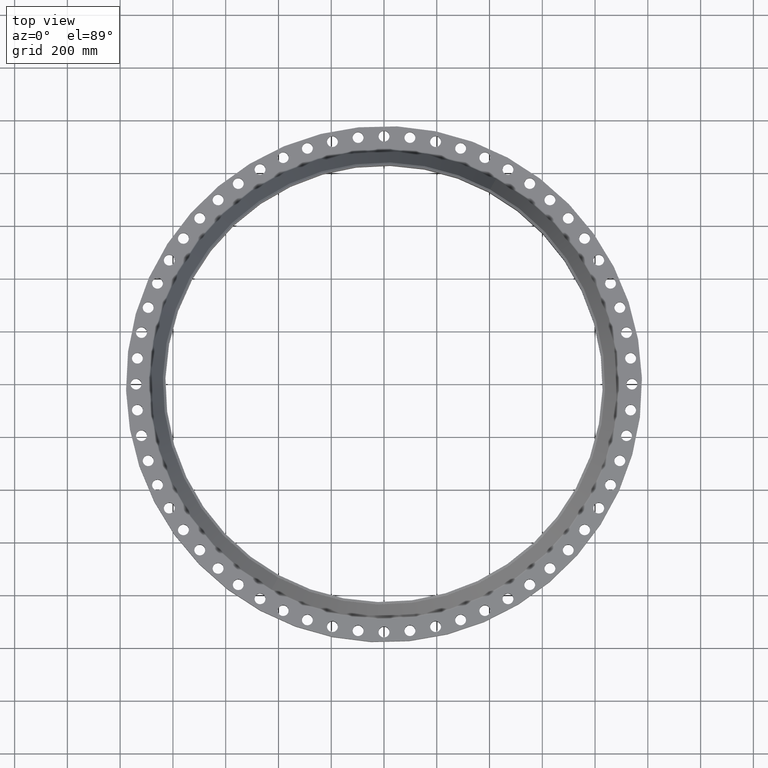
[diagram: clean part render]
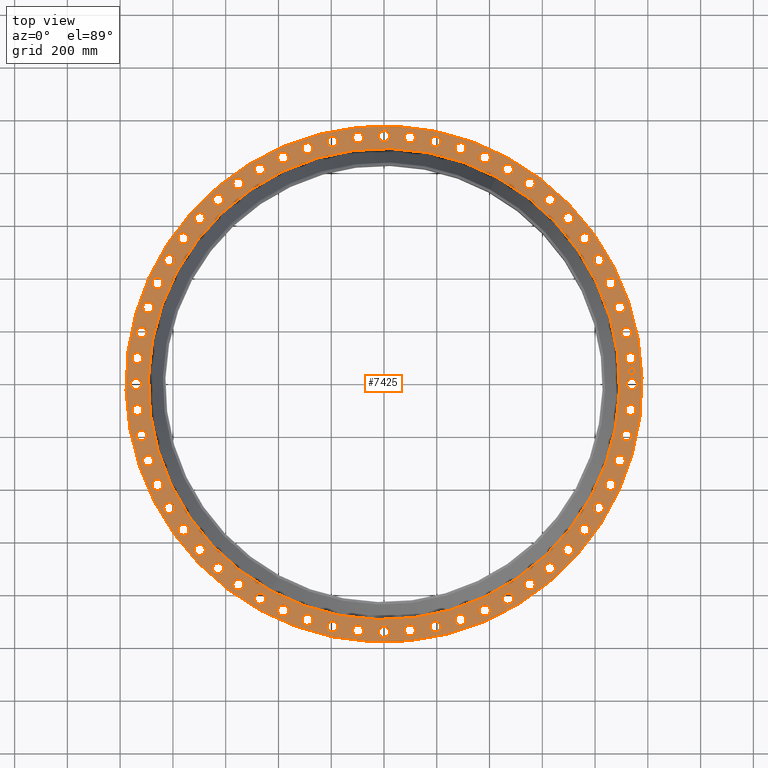
[diagram: same view with one face highlighted and labeled with its STEP entity id]
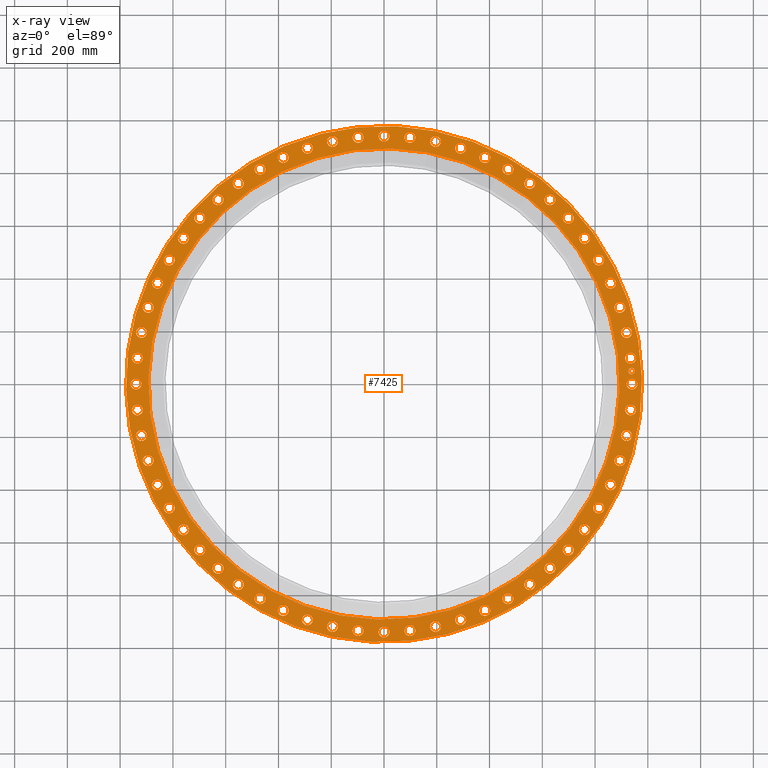
[diagram: x-ray of the same camera — body ghosted, the highlighted face saturated]
A machine part, top view. The second image highlights one B-rep face of the part: STEP entity #7425.
The next image is the same camera in x-ray: the body ghosted, the highlighted face saturated — about 0% of this face is hidden behind the body in this view.
In plain terms, the highlighted planar face has unit normal (0, 0, -1).
Its self-contained STEP definition (entity closure, byte-faithful):
#65=AXIS2_PLACEMENT_3D('Circle Axis2P3D',#63,#64,$) ;
#110=AXIS2_PLACEMENT_3D('Circle Axis2P3D',#108,#109,$) ;
#147=AXIS2_PLACEMENT_3D('Circle Axis2P3D',#145,#146,$) ;
#171=AXIS2_PLACEMENT_3D('Circle Axis2P3D',#169,#170,$) ;
#188=AXIS2_PLACEMENT_3D('Circle Axis2P3D',#186,#187,$) ;
#223=AXIS2_PLACEMENT_3D('Circle Axis2P3D',#221,#222,$) ;
#4402=AXIS2_PLACEMENT_3D('Circle Axis2P3D',#4400,#4401,$) ;
#4414=AXIS2_PLACEMENT_3D('Circle Axis2P3D',#4412,#4413,$) ;
#4449=AXIS2_PLACEMENT_3D('Circle Axis2P3D',#4447,#4448,$) ;
#4461=AXIS2_PLACEMENT_3D('Circle Axis2P3D',#4459,#4460,$) ;
#4496=AXIS2_PLACEMENT_3D('Circle Axis2P3D',#4494,#4495,$) ;
#4508=AXIS2_PLACEMENT_3D('Circle Axis2P3D',#4506,#4507,$) ;
#4543=AXIS2_PLACEMENT_3D('Circle Axis2P3D',#4541,#4542,$) ;
#4555=AXIS2_PLACEMENT_3D('Circle Axis2P3D',#4553,#4554,$) ;
#4590=AXIS2_PLACEMENT_3D('Circle Axis2P3D',#4588,#4589,$) ;
#4602=AXIS2_PLACEMENT_3D('Circle Axis2P3D',#4600,#4601,$) ;
#4637=AXIS2_PLACEMENT_3D('Circle Axis2P3D',#4635,#4636,$) ;
#4649=AXIS2_PLACEMENT_3D('Circle Axis2P3D',#4647,#4648,$) ;
#4684=AXIS2_PLACEMENT_3D('Circle Axis2P3D',#4682,#4683,$) ;
#4696=AXIS2_PLACEMENT_3D('Circle Axis2P3D',#4694,#4695,$) ;
#4731=AXIS2_PLACEMENT_3D('Circle Axis2P3D',#4729,#4730,$) ;
#4743=AXIS2_PLACEMENT_3D('Circle Axis2P3D',#4741,#4742,$) ;
#4778=AXIS2_PLACEMENT_3D('Circle Axis2P3D',#4776,#4777,$) ;
#4790=AXIS2_PLACEMENT_3D('Circle Axis2P3D',#4788,#4789,$) ;
#4825=AXIS2_PLACEMENT_3D('Circle Axis2P3D',#4823,#4824,$) ;
#4837=AXIS2_PLACEMENT_3D('Circle Axis2P3D',#4835,#4836,$) ;
#4872=AXIS2_PLACEMENT_3D('Circle Axis2P3D',#4870,#4871,$) ;
#4884=AXIS2_PLACEMENT_3D('Circle Axis2P3D',#4882,#4883,$) ;
#4919=AXIS2_PLACEMENT_3D('Circle Axis2P3D',#4917,#4918,$) ;
#4931=AXIS2_PLACEMENT_3D('Circle Axis2P3D',#4929,#4930,$) ;
#4966=AXIS2_PLACEMENT_3D('Circle Axis2P3D',#4964,#4965,$) ;
#4978=AXIS2_PLACEMENT_3D('Circle Axis2P3D',#4976,#4977,$) ;
#5013=AXIS2_PLACEMENT_3D('Circle Axis2P3D',#5011,#5012,$) ;
#5025=AXIS2_PLACEMENT_3D('Circle Axis2P3D',#5023,#5024,$) ;
#5060=AXIS2_PLACEMENT_3D('Circle Axis2P3D',#5058,#5059,$) ;
#5072=AXIS2_PLACEMENT_3D('Circle Axis2P3D',#5070,#5071,$) ;
#5107=AXIS2_PLACEMENT_3D('Circle Axis2P3D',#5105,#5106,$) ;
#5119=AXIS2_PLACEMENT_3D('Circle Axis2P3D',#5117,#5118,$) ;
#5154=AXIS2_PLACEMENT_3D('Circle Axis2P3D',#5152,#5153,$) ;
#5166=AXIS2_PLACEMENT_3D('Circle Axis2P3D',#5164,#5165,$) ;
#5201=AXIS2_PLACEMENT_3D('Circle Axis2P3D',#5199,#5200,$) ;
#5213=AXIS2_PLACEMENT_3D('Circle Axis2P3D',#5211,#5212,$) ;
#5248=AXIS2_PLACEMENT_3D('Circle Axis2P3D',#5246,#5247,$) ;
#5260=AXIS2_PLACEMENT_3D('Circle Axis2P3D',#5258,#5259,$) ;
#5295=AXIS2_PLACEMENT_3D('Circle Axis2P3D',#5293,#5294,$) ;
#5307=AXIS2_PLACEMENT_3D('Circle Axis2P3D',#5305,#5306,$) ;
#5342=AXIS2_PLACEMENT_3D('Circle Axis2P3D',#5340,#5341,$) ;
#5354=AXIS2_PLACEMENT_3D('Circle Axis2P3D',#5352,#5353,$) ;
#5389=AXIS2_PLACEMENT_3D('Circle Axis2P3D',#5387,#5388,$) ;
#5401=AXIS2_PLACEMENT_3D('Circle Axis2P3D',#5399,#5400,$) ;
#5436=AXIS2_PLACEMENT_3D('Circle Axis2P3D',#5434,#5435,$) ;
#5448=AXIS2_PLACEMENT_3D('Circle Axis2P3D',#5446,#5447,$) ;
#5483=AXIS2_PLACEMENT_3D('Circle Axis2P3D',#5481,#5482,$) ;
#5495=AXIS2_PLACEMENT_3D('Circle Axis2P3D',#5493,#5494,$) ;
#5530=AXIS2_PLACEMENT_3D('Circle Axis2P3D',#5528,#5529,$) ;
#5542=AXIS2_PLACEMENT_3D('Circle Axis2P3D',#5540,#5541,$) ;
#5577=AXIS2_PLACEMENT_3D('Circle Axis2P3D',#5575,#5576,$) ;
#5589=AXIS2_PLACEMENT_3D('Circle Axis2P3D',#5587,#5588,$) ;
#5624=AXIS2_PLACEMENT_3D('Circle Axis2P3D',#5622,#5623,$) ;
#5636=AXIS2_PLACEMENT_3D('Circle Axis2P3D',#5634,#5635,$) ;
#5671=AXIS2_PLACEMENT_3D('Circle Axis2P3D',#5669,#5670,$) ;
#5683=AXIS2_PLACEMENT_3D('Circle Axis2P3D',#5681,#5682,$) ;
#5718=AXIS2_PLACEMENT_3D('Circle Axis2P3D',#5716,#5717,$) ;
#5730=AXIS2_PLACEMENT_3D('Circle Axis2P3D',#5728,#5729,$) ;
#5765=AXIS2_PLACEMENT_3D('Circle Axis2P3D',#5763,#5764,$) ;
#5777=AXIS2_PLACEMENT_3D('Circle Axis2P3D',#5775,#5776,$) ;
#5812=AXIS2_PLACEMENT_3D('Circle Axis2P3D',#5810,#5811,$) ;
#5824=AXIS2_PLACEMENT_3D('Circle Axis2P3D',#5822,#5823,$) ;
#5859=AXIS2_PLACEMENT_3D('Circle Axis2P3D',#5857,#5858,$) ;
#5871=AXIS2_PLACEMENT_3D('Circle Axis2P3D',#5869,#5870,$) ;
#5906=AXIS2_PLACEMENT_3D('Circle Axis2P3D',#5904,#5905,$) ;
#5918=AXIS2_PLACEMENT_3D('Circle Axis2P3D',#5916,#5917,$) ;
#5953=AXIS2_PLACEMENT_3D('Circle Axis2P3D',#5951,#5952,$) ;
#5965=AXIS2_PLACEMENT_3D('Circle Axis2P3D',#5963,#5964,$) ;
#6000=AXIS2_PLACEMENT_3D('Circle Axis2P3D',#5998,#5999,$) ;
#6012=AXIS2_PLACEMENT_3D('Circle Axis2P3D',#6010,#6011,$) ;
#6047=AXIS2_PLACEMENT_3D('Circle Axis2P3D',#6045,#6046,$) ;
#6059=AXIS2_PLACEMENT_3D('Circle Axis2P3D',#6057,#6058,$) ;
#6094=AXIS2_PLACEMENT_3D('Circle Axis2P3D',#6092,#6093,$) ;
#6106=AXIS2_PLACEMENT_3D('Circle Axis2P3D',#6104,#6105,$) ;
#6141=AXIS2_PLACEMENT_3D('Circle Axis2P3D',#6139,#6140,$) ;
#6153=AXIS2_PLACEMENT_3D('Circle Axis2P3D',#6151,#6152,$) ;
#6188=AXIS2_PLACEMENT_3D('Circle Axis2P3D',#6186,#6187,$) ;
#6200=AXIS2_PLACEMENT_3D('Circle Axis2P3D',#6198,#6199,$) ;
#6235=AXIS2_PLACEMENT_3D('Circle Axis2P3D',#6233,#6234,$) ;
#6247=AXIS2_PLACEMENT_3D('Circle Axis2P3D',#6245,#6246,$) ;
#6282=AXIS2_PLACEMENT_3D('Circle Axis2P3D',#6280,#6281,$) ;
#6294=AXIS2_PLACEMENT_3D('Circle Axis2P3D',#6292,#6293,$) ;
#6329=AXIS2_PLACEMENT_3D('Circle Axis2P3D',#6327,#6328,$) ;
#6341=AXIS2_PLACEMENT_3D('Circle Axis2P3D',#6339,#6340,$) ;
#6376=AXIS2_PLACEMENT_3D('Circle Axis2P3D',#6374,#6375,$) ;
#6388=AXIS2_PLACEMENT_3D('Circle Axis2P3D',#6386,#6387,$) ;
#6423=AXIS2_PLACEMENT_3D('Circle Axis2P3D',#6421,#6422,$) ;
#6435=AXIS2_PLACEMENT_3D('Circle Axis2P3D',#6433,#6434,$) ;
#6470=AXIS2_PLACEMENT_3D('Circle Axis2P3D',#6468,#6469,$) ;
#6482=AXIS2_PLACEMENT_3D('Circle Axis2P3D',#6480,#6481,$) ;
#6517=AXIS2_PLACEMENT_3D('Circle Axis2P3D',#6515,#6516,$) ;
#6529=AXIS2_PLACEMENT_3D('Circle Axis2P3D',#6527,#6528,$) ;
#6564=AXIS2_PLACEMENT_3D('Circle Axis2P3D',#6562,#6563,$) ;
#6576=AXIS2_PLACEMENT_3D('Circle Axis2P3D',#6574,#6575,$) ;
#6611=AXIS2_PLACEMENT_3D('Circle Axis2P3D',#6609,#6610,$) ;
#6623=AXIS2_PLACEMENT_3D('Circle Axis2P3D',#6621,#6622,$) ;
#6658=AXIS2_PLACEMENT_3D('Circle Axis2P3D',#6656,#6657,$) ;
#6670=AXIS2_PLACEMENT_3D('Circle Axis2P3D',#6668,#6669,$) ;
#6705=AXIS2_PLACEMENT_3D('Circle Axis2P3D',#6703,#6704,$) ;
#6717=AXIS2_PLACEMENT_3D('Circle Axis2P3D',#6715,#6716,$) ;
#6752=AXIS2_PLACEMENT_3D('Circle Axis2P3D',#6750,#6751,$) ;
#6764=AXIS2_PLACEMENT_3D('Circle Axis2P3D',#6762,#6763,$) ;
#6799=AXIS2_PLACEMENT_3D('Circle Axis2P3D',#6797,#6798,$) ;
#6811=AXIS2_PLACEMENT_3D('Circle Axis2P3D',#6809,#6810,$) ;
#6846=AXIS2_PLACEMENT_3D('Circle Axis2P3D',#6844,#6845,$) ;
#6858=AXIS2_PLACEMENT_3D('Circle Axis2P3D',#6856,#6857,$) ;
#6893=AXIS2_PLACEMENT_3D('Circle Axis2P3D',#6891,#6892,$) ;
#6905=AXIS2_PLACEMENT_3D('Circle Axis2P3D',#6903,#6904,$) ;
#6940=AXIS2_PLACEMENT_3D('Circle Axis2P3D',#6938,#6939,$) ;
#6952=AXIS2_PLACEMENT_3D('Circle Axis2P3D',#6950,#6951,$) ;
#6987=AXIS2_PLACEMENT_3D('Circle Axis2P3D',#6985,#6986,$) ;
#6999=AXIS2_PLACEMENT_3D('Circle Axis2P3D',#6997,#6998,$) ;
#7034=AXIS2_PLACEMENT_3D('Circle Axis2P3D',#7032,#7033,$) ;
#7046=AXIS2_PLACEMENT_3D('Circle Axis2P3D',#7044,#7045,$) ;
#7081=AXIS2_PLACEMENT_3D('Circle Axis2P3D',#7079,#7080,$) ;
#7093=AXIS2_PLACEMENT_3D('Circle Axis2P3D',#7091,#7092,$) ;
#7128=AXIS2_PLACEMENT_3D('Circle Axis2P3D',#7126,#7127,$) ;
#7140=AXIS2_PLACEMENT_3D('Circle Axis2P3D',#7138,#7139,$) ;
#7157=AXIS2_PLACEMENT_3D('Plane Axis2P3D',#7154,#7155,#7156) ;
#7409=AXIS2_PLACEMENT_3D('Circle Axis2P3D',#7407,#7408,$) ;
#7418=AXIS2_PLACEMENT_3D('Circle Axis2P3D',#7416,#7417,$) ;
#46=CARTESIAN_POINT('Vertex',(36.2847702122,0.390731813964,4.00000000002)) ;
#60=CARTESIAN_POINT('Vertex',(37.7152297881,-0.390731813964,4.00000000002)) ;
#63=CARTESIAN_POINT('Axis2P3D Location',(37.0000000001,0.,4.00000000002)) ;
#108=CARTESIAN_POINT('Axis2P3D Location',(37.0000000001,0.,4.00000000002)) ;
#142=CARTESIAN_POINT('Vertex',(-18.4578832363,-33.7869286329,4.00000000002)) ;
#145=CARTESIAN_POINT('Axis2P3D Location',(0.,0.,4.00000000002)) ;
#149=CARTESIAN_POINT('Vertex',(18.4578832363,33.7869286329,4.00000000002)) ;
#169=CARTESIAN_POINT('Axis2P3D Location',(0.,0.,4.00000000002)) ;
#186=CARTESIAN_POINT('Axis2P3D Location',(0.,0.,4.00000000002)) ;
#190=CARTESIAN_POINT('Vertex',(16.8541670485,30.851345842,4.00000000002)) ;
#192=CARTESIAN_POINT('Vertex',(-16.8541670485,-30.851345842,4.00000000002)) ;
#221=CARTESIAN_POINT('Axis2P3D Location',(0.,0.,4.00000000002)) ;
#4390=CARTESIAN_POINT('Vertex',(10.8410025948,34.6296099233,4.00000000002)) ;
#4397=CARTESIAN_POINT('Vertex',(12.0262549891,35.7485722828,4.00000000002)) ;
#4400=CARTESIAN_POINT('Axis2P3D Location',(11.4336287919,35.1890911031,4.00000000002)) ;
#4412=CARTESIAN_POINT('Axis2P3D Location',(11.4336287919,35.1890911031,4.00000000002)) ;
#4437=CARTESIAN_POINT('Vertex',(-34.6296099233,10.8410025948,4.00000000002)) ;
#4444=CARTESIAN_POINT('Vertex',(-35.7485722828,12.0262549891,4.00000000002)) ;
#4447=CARTESIAN_POINT('Axis2P3D Location',(-35.1890911031,11.4336287919,4.00000000002)) ;
#4459=CARTESIAN_POINT('Axis2P3D Location',(-35.1890911031,11.4336287919,4.00000000002)) ;
#4484=CARTESIAN_POINT('Vertex',(32.9888620626,15.1152969047,4.00000000002)) ;
#4491=CARTESIAN_POINT('Vertex',(34.6135018032,14.983214683,4.00000000002)) ;
#4494=CARTESIAN_POINT('Axis2P3D Location',(33.8011819329,15.0492557939,4.00000000002)) ;
#4506=CARTESIAN_POINT('Axis2P3D Location',(33.8011819329,15.0492557939,4.00000000002)) ;
#4531=CARTESIAN_POINT('Vertex',(36.1268410405,-3.4041999261,4.00000000002)) ;
#4538=CARTESIAN_POINT('Vertex',(37.467779217,-4.33090635574,4.00000000002)) ;
#4541=CARTESIAN_POINT('Axis2P3D Location',(36.7973101288,-3.86755314092,4.00000000002)) ;
#4553=CARTESIAN_POINT('Axis2P3D Location',(36.7973101288,-3.86755314092,4.00000000002)) ;
#4578=CARTESIAN_POINT('Vertex',(-35.5730986383,7.16183453939,4.00000000002)) ;
#4585=CARTESIAN_POINT('Vertex',(-36.8098238162,8.22363058118,4.00000000002)) ;
#4588=CARTESIAN_POINT('Axis2P3D Location',(-36.1914612273,7.69273256029,4.00000000002)) ;
#4600=CARTESIAN_POINT('Axis2P3D Location',(-36.1914612273,7.69273256029,4.00000000002)) ;
#4625=CARTESIAN_POINT('Vertex',(35.5730986383,-7.16183453939,4.00000000002)) ;
#4632=CARTESIAN_POINT('Vertex',(36.8098238162,-8.22363058118,4.00000000002)) ;
#4635=CARTESIAN_POINT('Axis2P3D Location',(36.1914612273,-7.69273256029,4.00000000002)) ;
#4647=CARTESIAN_POINT('Axis2P3D Location',(36.1914612273,-7.69273256029,4.00000000002)) ;
#4672=CARTESIAN_POINT('Vertex',(-11.5842186704,34.3881243818,4.00000000002)) ;
#4679=CARTESIAN_POINT('Vertex',(-11.2830389135,35.9900578243,4.00000000002)) ;
#4682=CARTESIAN_POINT('Axis2P3D Location',(-11.4336287919,35.1890911031,4.00000000002)) ;
#4694=CARTESIAN_POINT('Axis2P3D Location',(-11.4336287919,35.1890911031,4.00000000002)) ;
#4719=CARTESIAN_POINT('Vertex',(34.6296099233,-10.8410025948,4.00000000002)) ;
#4726=CARTESIAN_POINT('Vertex',(35.7485722828,-12.0262549891,4.00000000002)) ;
#4729=CARTESIAN_POINT('Axis2P3D Location',(35.1890911031,-11.4336287919,4.00000000002)) ;
#4741=CARTESIAN_POINT('Axis2P3D Location',(35.1890911031,-11.4336287919,4.00000000002)) ;
#4766=CARTESIAN_POINT('Vertex',(-29.5846621365,21.0115441358,4.00000000002)) ;
#4773=CARTESIAN_POINT('Vertex',(-30.2825954475,22.484564534,4.00000000002)) ;
#4776=CARTESIAN_POINT('Axis2P3D Location',(-29.933628792,21.7480543349,4.00000000002)) ;
#4788=CARTESIAN_POINT('Axis2P3D Location',(-29.933628792,21.7480543349,4.00000000002)) ;
#4813=CARTESIAN_POINT('Vertex',(33.3067119553,-14.4013943571,4.00000000002)) ;
#4820=CARTESIAN_POINT('Vertex',(34.2956519105,-15.6971172306,4.00000000002)) ;
#4823=CARTESIAN_POINT('Axis2P3D Location',(33.8011819329,-15.0492557939,4.00000000002)) ;
#4835=CARTESIAN_POINT('Axis2P3D Location',(33.8011819329,-15.0492557939,4.00000000002)) ;
#4860=CARTESIAN_POINT('Vertex',(-15.1152969047,32.9888620626,4.00000000002)) ;
#4867=CARTESIAN_POINT('Vertex',(-14.983214683,34.6135018032,4.00000000002)) ;
#4870=CARTESIAN_POINT('Axis2P3D Location',(-15.0492557939,33.8011819329,4.00000000002)) ;
#4882=CARTESIAN_POINT('Axis2P3D Location',(-15.0492557939,33.8011819329,4.00000000002)) ;
#4907=CARTESIAN_POINT('Vertex',(31.6188986812,-17.8040014291,4.00000000002)) ;
#4914=CARTESIAN_POINT('Vertex',(32.4669811991,-19.195998571,4.00000000002)) ;
#4917=CARTESIAN_POINT('Axis2P3D Location',(32.0429399402,-18.5000000001,4.00000000002)) ;
#4929=CARTESIAN_POINT('Axis2P3D Location',(32.0429399402,-18.5000000001,4.00000000002)) ;
#4954=CARTESIAN_POINT('Vertex',(-7.92622131211,35.4106232141,4.00000000002)) ;
#4961=CARTESIAN_POINT('Vertex',(-7.45924380846,36.9722992404,4.00000000002)) ;
#4964=CARTESIAN_POINT('Axis2P3D Location',(-7.69273256029,36.1914612273,4.00000000002)) ;
#4976=CARTESIAN_POINT('Axis2P3D Location',(-7.69273256029,36.1914612273,4.00000000002)) ;
#5001=CARTESIAN_POINT('Vertex',(29.5846621365,-21.0115441358,4.00000000002)) ;
#5008=CARTESIAN_POINT('Vertex',(30.2825954475,-22.484564534,4.00000000002)) ;
#5011=CARTESIAN_POINT('Axis2P3D Location',(29.933628792,-21.7480543349,4.00000000002)) ;
#5023=CARTESIAN_POINT('Axis2P3D Location',(29.933628792,-21.7480543349,4.00000000002)) ;
#5048=CARTESIAN_POINT('Vertex',(17.8040014291,31.6188986812,4.00000000002)) ;
#5055=CARTESIAN_POINT('Vertex',(19.195998571,32.4669811991,4.00000000002)) ;
#5058=CARTESIAN_POINT('Axis2P3D Location',(18.5000000001,32.0429399402,4.00000000002)) ;
#5070=CARTESIAN_POINT('Axis2P3D Location',(18.5000000001,32.0429399402,4.00000000002)) ;
#5095=CARTESIAN_POINT('Vertex',(27.2262898424,-23.988879968,4.00000000002)) ;
#5102=CARTESIAN_POINT('Vertex',(27.7664272431,-25.5267849028,4.00000000002)) ;
#5105=CARTESIAN_POINT('Axis2P3D Location',(27.4963585428,-24.7578324354,4.00000000002)) ;
#5117=CARTESIAN_POINT('Axis2P3D Location',(27.4963585428,-24.7578324354,4.00000000002)) ;
#5142=CARTESIAN_POINT('Vertex',(29.1253293408,21.6437614913,4.00000000002)) ;
#5149=CARTESIAN_POINT('Vertex',(30.7419282432,21.8523471785,4.00000000002)) ;
#5152=CARTESIAN_POINT('Axis2P3D Location',(29.933628792,21.7480543349,4.00000000002)) ;
#5164=CARTESIAN_POINT('Axis2P3D Location',(29.933628792,21.7480543349,4.00000000002)) ;
#5189=CARTESIAN_POINT('Vertex',(24.5696206194,-26.7033886112,4.00000000002)) ;
#5196=CARTESIAN_POINT('Vertex',(24.9460442514,-28.2893284743,4.00000000002)) ;
#5199=CARTESIAN_POINT('Axis2P3D Location',(24.7578324354,-27.4963585428,4.00000000002)) ;
#5211=CARTESIAN_POINT('Axis2P3D Location',(24.7578324354,-27.4963585428,4.00000000002)) ;
#5236=CARTESIAN_POINT('Vertex',(35.4106232141,7.92622131211,4.00000000002)) ;
#5243=CARTESIAN_POINT('Vertex',(36.9722992404,7.45924380846,4.00000000002)) ;
#5246=CARTESIAN_POINT('Axis2P3D Location',(36.1914612273,7.69273256029,4.00000000002)) ;
#5258=CARTESIAN_POINT('Axis2P3D Location',(36.1914612273,7.69273256029,4.00000000002)) ;
#5283=CARTESIAN_POINT('Vertex',(21.6437614913,-29.1253293408,4.00000000002)) ;
#5290=CARTESIAN_POINT('Vertex',(21.8523471785,-30.7419282432,4.00000000002)) ;
#5293=CARTESIAN_POINT('Axis2P3D Location',(21.7480543349,-29.933628792,4.00000000002)) ;
#5305=CARTESIAN_POINT('Axis2P3D Location',(21.7480543349,-29.933628792,4.00000000002)) ;
#5330=CARTESIAN_POINT('Vertex',(3.4041999261,36.1268410405,4.00000000002)) ;
#5337=CARTESIAN_POINT('Vertex',(4.33090635574,37.467779217,4.00000000002)) ;
#5340=CARTESIAN_POINT('Axis2P3D Location',(3.86755314092,36.7973101288,4.00000000002)) ;
#5352=CARTESIAN_POINT('Axis2P3D Location',(3.86755314092,36.7973101288,4.00000000002)) ;
#5377=CARTESIAN_POINT('Vertex',(18.4807687831,-31.2281668673,4.00000000002)) ;
#5384=CARTESIAN_POINT('Vertex',(18.5192312171,-32.857713013,4.00000000002)) ;
#5387=CARTESIAN_POINT('Axis2P3D Location',(18.5000000001,-32.0429399402,4.00000000002)) ;
#5399=CARTESIAN_POINT('Axis2P3D Location',(18.5000000001,-32.0429399402,4.00000000002)) ;
#5424=CARTESIAN_POINT('Vertex',(31.2281668673,18.4807687831,4.00000000002)) ;
#5431=CARTESIAN_POINT('Vertex',(32.857713013,18.5192312171,4.00000000002)) ;
#5434=CARTESIAN_POINT('Axis2P3D Location',(32.0429399402,18.5000000001,4.00000000002)) ;
#5446=CARTESIAN_POINT('Axis2P3D Location',(32.0429399402,18.5000000001,4.00000000002)) ;
#5471=CARTESIAN_POINT('Vertex',(15.1152969047,-32.9888620626,4.00000000002)) ;
#5478=CARTESIAN_POINT('Vertex',(14.983214683,-34.6135018032,4.00000000002)) ;
#5481=CARTESIAN_POINT('Axis2P3D Location',(15.0492557939,-33.8011819329,4.00000000002)) ;
#5493=CARTESIAN_POINT('Axis2P3D Location',(15.0492557939,-33.8011819329,4.00000000002)) ;
#5518=CARTESIAN_POINT('Vertex',(-33.3067119553,14.4013943571,4.00000000002)) ;
#5525=CARTESIAN_POINT('Vertex',(-34.2956519105,15.6971172306,4.00000000002)) ;
#5528=CARTESIAN_POINT('Axis2P3D Location',(-33.8011819329,15.0492557939,4.00000000002)) ;
#5540=CARTESIAN_POINT('Axis2P3D Location',(-33.8011819329,15.0492557939,4.00000000002)) ;
#5565=CARTESIAN_POINT('Vertex',(11.5842186704,-34.3881243818,4.00000000002)) ;
#5572=CARTESIAN_POINT('Vertex',(11.2830389135,-35.9900578243,4.00000000002)) ;
#5575=CARTESIAN_POINT('Axis2P3D Location',(11.4336287919,-35.1890911031,4.00000000002)) ;
#5587=CARTESIAN_POINT('Axis2P3D Location',(11.4336287919,-35.1890911031,4.00000000002)) ;
#5612=CARTESIAN_POINT('Vertex',(-4.18138261451,36.0451558484,4.00000000002)) ;
#5619=CARTESIAN_POINT('Vertex',(-3.55372366733,37.5494644092,4.00000000002)) ;
#5622=CARTESIAN_POINT('Axis2P3D Location',(-3.86755314092,36.7973101288,4.00000000002)) ;
#5634=CARTESIAN_POINT('Axis2P3D Location',(-3.86755314092,36.7973101288,4.00000000002)) ;
#5659=CARTESIAN_POINT('Vertex',(7.92622131211,-35.4106232141,4.00000000002)) ;
#5666=CARTESIAN_POINT('Vertex',(7.45924380846,-36.9722992404,4.00000000002)) ;
#5669=CARTESIAN_POINT('Axis2P3D Location',(7.69273256029,-36.1914612273,4.00000000002)) ;
#5681=CARTESIAN_POINT('Axis2P3D Location',(7.69273256029,-36.1914612273,4.00000000002)) ;
#5706=CARTESIAN_POINT('Vertex',(-21.6437614913,29.1253293408,4.00000000002)) ;
#5713=CARTESIAN_POINT('Vertex',(-21.8523471785,30.7419282432,4.00000000002)) ;
#5716=CARTESIAN_POINT('Axis2P3D Location',(-21.7480543349,29.933628792,4.00000000002)) ;
#5728=CARTESIAN_POINT('Axis2P3D Location',(-21.7480543349,29.933628792,4.00000000002)) ;
#5753=CARTESIAN_POINT('Vertex',(4.18138261451,-36.0451558484,4.00000000002)) ;
#5760=CARTESIAN_POINT('Vertex',(3.55372366733,-37.5494644092,4.00000000002)) ;
#5763=CARTESIAN_POINT('Axis2P3D Location',(3.86755314092,-36.7973101288,4.00000000002)) ;
#5775=CARTESIAN_POINT('Axis2P3D Location',(3.86755314092,-36.7973101288,4.00000000002)) ;
#5800=CARTESIAN_POINT('Vertex',(-24.5696206194,26.7033886112,4.00000000002)) ;
#5807=CARTESIAN_POINT('Vertex',(-24.9460442514,28.2893284743,4.00000000002)) ;
#5810=CARTESIAN_POINT('Axis2P3D Location',(-24.7578324354,27.4963585428,4.00000000002)) ;
#5822=CARTESIAN_POINT('Axis2P3D Location',(-24.7578324354,27.4963585428,4.00000000002)) ;
#5847=CARTESIAN_POINT('Vertex',(0.390731813964,-36.2847702122,4.00000000002)) ;
#5854=CARTESIAN_POINT('Vertex',(-0.390731813964,-37.7152297881,4.00000000002)) ;
#5857=CARTESIAN_POINT('Axis2P3D Location',(2.26559657843E-015,-37.0000000001,4.00000000002)) ;
#5869=CARTESIAN_POINT('Axis2P3D Location',(2.26559657843E-015,-37.0000000001,4.00000000002)) ;
#5894=CARTESIAN_POINT('Vertex',(-36.1268410405,3.4041999261,4.00000000002)) ;
#5901=CARTESIAN_POINT('Vertex',(-37.467779217,4.33090635574,4.00000000002)) ;
#5904=CARTESIAN_POINT('Axis2P3D Location',(-36.7973101288,3.86755314092,4.00000000002)) ;
#5916=CARTESIAN_POINT('Axis2P3D Location',(-36.7973101288,3.86755314092,4.00000000002)) ;
#5941=CARTESIAN_POINT('Vertex',(-3.4041999261,-36.1268410405,4.00000000002)) ;
#5948=CARTESIAN_POINT('Vertex',(-4.33090635574,-37.467779217,4.00000000002)) ;
#5951=CARTESIAN_POINT('Axis2P3D Location',(-3.86755314092,-36.7973101288,4.00000000002)) ;
#5963=CARTESIAN_POINT('Axis2P3D Location',(-3.86755314092,-36.7973101288,4.00000000002)) ;
#5988=CARTESIAN_POINT('Vertex',(14.4013943571,33.3067119553,4.00000000002)) ;
#5995=CARTESIAN_POINT('Vertex',(15.6971172306,34.2956519105,4.00000000002)) ;
#5998=CARTESIAN_POINT('Axis2P3D Location',(15.0492557939,33.8011819329,4.00000000002)) ;
#6010=CARTESIAN_POINT('Axis2P3D Location',(15.0492557939,33.8011819329,4.00000000002)) ;
#6035=CARTESIAN_POINT('Vertex',(-7.16183453939,-35.5730986383,4.00000000002)) ;
#6042=CARTESIAN_POINT('Vertex',(-8.22363058118,-36.8098238162,4.00000000002)) ;
#6045=CARTESIAN_POINT('Axis2P3D Location',(-7.69273256029,-36.1914612273,4.00000000002)) ;
#6057=CARTESIAN_POINT('Axis2P3D Location',(-7.69273256029,-36.1914612273,4.00000000002)) ;
#6082=CARTESIAN_POINT('Vertex',(23.988879968,27.2262898424,4.00000000002)) ;
#6089=CARTESIAN_POINT('Vertex',(25.5267849028,27.7664272431,4.00000000002)) ;
#6092=CARTESIAN_POINT('Axis2P3D Location',(24.7578324354,27.4963585428,4.00000000002)) ;
#6104=CARTESIAN_POINT('Axis2P3D Location',(24.7578324354,27.4963585428,4.00000000002)) ;
#6129=CARTESIAN_POINT('Vertex',(-10.8410025948,-34.6296099233,4.00000000002)) ;
#6136=CARTESIAN_POINT('Vertex',(-12.0262549891,-35.7485722828,4.00000000002)) ;
#6139=CARTESIAN_POINT('Axis2P3D Location',(-11.4336287919,-35.1890911031,4.00000000002)) ;
#6151=CARTESIAN_POINT('Axis2P3D Location',(-11.4336287919,-35.1890911031,4.00000000002)) ;
#6176=CARTESIAN_POINT('Vertex',(-31.6188986812,17.8040014291,4.00000000002)) ;
#6183=CARTESIAN_POINT('Vertex',(-32.4669811991,19.195998571,4.00000000002)) ;
#6186=CARTESIAN_POINT('Axis2P3D Location',(-32.0429399402,18.5000000001,4.00000000002)) ;
#6198=CARTESIAN_POINT('Axis2P3D Location',(-32.0429399402,18.5000000001,4.00000000002)) ;
#6223=CARTESIAN_POINT('Vertex',(-14.4013943571,-33.3067119553,4.00000000002)) ;
#6230=CARTESIAN_POINT('Vertex',(-15.6971172306,-34.2956519105,4.00000000002)) ;
#6233=CARTESIAN_POINT('Axis2P3D Location',(-15.0492557939,-33.8011819329,4.00000000002)) ;
#6245=CARTESIAN_POINT('Axis2P3D Location',(-15.0492557939,-33.8011819329,4.00000000002)) ;
#6270=CARTESIAN_POINT('Vertex',(-36.2847702122,-0.390731813964,4.00000000002)) ;
#6277=CARTESIAN_POINT('Vertex',(-37.7152297881,0.390731813964,4.00000000002)) ;
#6280=CARTESIAN_POINT('Axis2P3D Location',(-37.0000000001,-4.53119315686E-015,4.00000000002)) ;
#6292=CARTESIAN_POINT('Axis2P3D Location',(-37.0000000001,-4.53119315686E-015,4.00000000002)) ;
#6317=CARTESIAN_POINT('Vertex',(-17.8040014291,-31.6188986812,4.00000000002)) ;
#6324=CARTESIAN_POINT('Vertex',(-19.195998571,-32.4669811991,4.00000000002)) ;
#6327=CARTESIAN_POINT('Axis2P3D Location',(-18.5000000001,-32.0429399402,4.00000000002)) ;
#6339=CARTESIAN_POINT('Axis2P3D Location',(-18.5000000001,-32.0429399402,4.00000000002)) ;
#6364=CARTESIAN_POINT('Vertex',(-0.390731813964,36.2847702122,4.00000000002)) ;
#6371=CARTESIAN_POINT('Vertex',(0.390731813964,37.7152297881,4.00000000002)) ;
#6374=CARTESIAN_POINT('Axis2P3D Location',(-6.79678973529E-015,37.0000000001,4.00000000002)) ;
#6386=CARTESIAN_POINT('Axis2P3D Location',(-6.79678973529E-015,37.0000000001,4.00000000002)) ;
#6411=CARTESIAN_POINT('Vertex',(-21.0115441358,-29.5846621365,4.00000000002)) ;
#6418=CARTESIAN_POINT('Vertex',(-22.484564534,-30.2825954475,4.00000000002)) ;
#6421=CARTESIAN_POINT('Axis2P3D Location',(-21.7480543349,-29.933628792,4.00000000002)) ;
#6433=CARTESIAN_POINT('Axis2P3D Location',(-21.7480543349,-29.933628792,4.00000000002)) ;
#6458=CARTESIAN_POINT('Vertex',(34.3881243818,11.5842186704,4.00000000002)) ;
#6465=CARTESIAN_POINT('Vertex',(35.9900578243,11.2830389135,4.00000000002)) ;
#6468=CARTESIAN_POINT('Axis2P3D Location',(35.1890911031,11.4336287919,4.00000000002)) ;
#6480=CARTESIAN_POINT('Axis2P3D Location',(35.1890911031,11.4336287919,4.00000000002)) ;
#6505=CARTESIAN_POINT('Vertex',(-23.988879968,-27.2262898424,4.00000000002)) ;
#6512=CARTESIAN_POINT('Vertex',(-25.5267849028,-27.7664272431,4.00000000002)) ;
#6515=CARTESIAN_POINT('Axis2P3D Location',(-24.7578324354,-27.4963585428,4.00000000002)) ;
#6527=CARTESIAN_POINT('Axis2P3D Location',(-24.7578324354,-27.4963585428,4.00000000002)) ;
#6552=CARTESIAN_POINT('Vertex',(21.0115441358,29.5846621365,4.00000000002)) ;
#6559=CARTESIAN_POINT('Vertex',(22.484564534,30.2825954475,4.00000000002)) ;
#6562=CARTESIAN_POINT('Axis2P3D Location',(21.7480543349,29.933628792,4.00000000002)) ;
#6574=CARTESIAN_POINT('Axis2P3D Location',(21.7480543349,29.933628792,4.00000000002)) ;
#6599=CARTESIAN_POINT('Vertex',(-26.7033886112,-24.5696206194,4.00000000002)) ;
#6606=CARTESIAN_POINT('Vertex',(-28.2893284743,-24.9460442514,4.00000000002)) ;
#6609=CARTESIAN_POINT('Axis2P3D Location',(-27.4963585428,-24.7578324354,4.00000000002)) ;
#6621=CARTESIAN_POINT('Axis2P3D Location',(-27.4963585428,-24.7578324354,4.00000000002)) ;
#6646=CARTESIAN_POINT('Vertex',(36.0451558484,4.18138261451,4.00000000002)) ;
#6653=CARTESIAN_POINT('Vertex',(37.5494644092,3.55372366733,4.00000000002)) ;
#6656=CARTESIAN_POINT('Axis2P3D Location',(36.7973101288,3.86755314092,4.00000000002)) ;
#6668=CARTESIAN_POINT('Axis2P3D Location',(36.7973101288,3.86755314092,4.00000000002)) ;
#6693=CARTESIAN_POINT('Vertex',(-29.1253293408,-21.6437614913,4.00000000002)) ;
#6700=CARTESIAN_POINT('Vertex',(-30.7419282432,-21.8523471785,4.00000000002)) ;
#6703=CARTESIAN_POINT('Axis2P3D Location',(-29.933628792,-21.7480543349,4.00000000002)) ;
#6715=CARTESIAN_POINT('Axis2P3D Location',(-29.933628792,-21.7480543349,4.00000000002)) ;
#6740=CARTESIAN_POINT('Vertex',(26.7033886112,24.5696206194,4.00000000002)) ;
#6747=CARTESIAN_POINT('Vertex',(28.2893284743,24.9460442514,4.00000000002)) ;
#6750=CARTESIAN_POINT('Axis2P3D Location',(27.4963585428,24.7578324354,4.00000000002)) ;
#6762=CARTESIAN_POINT('Axis2P3D Location',(27.4963585428,24.7578324354,4.00000000002)) ;
#6787=CARTESIAN_POINT('Vertex',(-31.2281668673,-18.4807687831,4.00000000002)) ;
#6794=CARTESIAN_POINT('Vertex',(-32.857713013,-18.5192312171,4.00000000002)) ;
#6797=CARTESIAN_POINT('Axis2P3D Location',(-32.0429399402,-18.5000000001,4.00000000002)) ;
#6809=CARTESIAN_POINT('Axis2P3D Location',(-32.0429399402,-18.5000000001,4.00000000002)) ;
#6834=CARTESIAN_POINT('Vertex',(-18.4807687831,31.2281668673,4.00000000002)) ;
#6841=CARTESIAN_POINT('Vertex',(-18.5192312171,32.857713013,4.00000000002)) ;
#6844=CARTESIAN_POINT('Axis2P3D Location',(-18.5000000001,32.0429399402,4.00000000002)) ;
#6856=CARTESIAN_POINT('Axis2P3D Location',(-18.5000000001,32.0429399402,4.00000000002)) ;
#6881=CARTESIAN_POINT('Vertex',(-32.9888620626,-15.1152969047,4.00000000002)) ;
#6888=CARTESIAN_POINT('Vertex',(-34.6135018032,-14.983214683,4.00000000002)) ;
#6891=CARTESIAN_POINT('Axis2P3D Location',(-33.8011819329,-15.0492557939,4.00000000002)) ;
#6903=CARTESIAN_POINT('Axis2P3D Location',(-33.8011819329,-15.0492557939,4.00000000002)) ;
#6928=CARTESIAN_POINT('Vertex',(-27.2262898424,23.988879968,4.00000000002)) ;
#6935=CARTESIAN_POINT('Vertex',(-27.7664272431,25.5267849028,4.00000000002)) ;
#6938=CARTESIAN_POINT('Axis2P3D Location',(-27.4963585428,24.7578324354,4.00000000002)) ;
#6950=CARTESIAN_POINT('Axis2P3D Location',(-27.4963585428,24.7578324354,4.00000000002)) ;
#6975=CARTESIAN_POINT('Vertex',(-34.3881243818,-11.5842186704,4.00000000002)) ;
#6982=CARTESIAN_POINT('Vertex',(-35.9900578243,-11.2830389135,4.00000000002)) ;
#6985=CARTESIAN_POINT('Axis2P3D Location',(-35.1890911031,-11.4336287919,4.00000000002)) ;
#6997=CARTESIAN_POINT('Axis2P3D Location',(-35.1890911031,-11.4336287919,4.00000000002)) ;
#7022=CARTESIAN_POINT('Vertex',(-36.0451558484,-4.18138261451,4.00000000002)) ;
#7029=CARTESIAN_POINT('Vertex',(-37.5494644092,-3.55372366733,4.00000000002)) ;
#7032=CARTESIAN_POINT('Axis2P3D Location',(-36.7973101288,-3.86755314092,4.00000000002)) ;
#7044=CARTESIAN_POINT('Axis2P3D Location',(-36.7973101288,-3.86755314092,4.00000000002)) ;
#7069=CARTESIAN_POINT('Vertex',(-35.4106232141,-7.92622131211,4.00000000002)) ;
#7076=CARTESIAN_POINT('Vertex',(-36.9722992404,-7.45924380846,4.00000000002)) ;
#7079=CARTESIAN_POINT('Axis2P3D Location',(-36.1914612273,-7.69273256029,4.00000000002)) ;
#7091=CARTESIAN_POINT('Axis2P3D Location',(-36.1914612273,-7.69273256029,4.00000000002)) ;
#7116=CARTESIAN_POINT('Vertex',(7.16183453939,35.5730986383,4.00000000002)) ;
#7123=CARTESIAN_POINT('Vertex',(8.22363058118,36.8098238162,4.00000000002)) ;
#7126=CARTESIAN_POINT('Axis2P3D Location',(7.69273256029,36.1914612273,4.00000000002)) ;
#7138=CARTESIAN_POINT('Axis2P3D Location',(7.69273256029,36.1914612273,4.00000000002)) ;
#7154=CARTESIAN_POINT('Axis2P3D Location',(0.,38.5000000002,4.00000000002)) ;
#7407=CARTESIAN_POINT('Axis2P3D Location',(36.9492927861,1.936430381,4.00000000002)) ;
#7411=CARTESIAN_POINT('Vertex',(36.9231248679,2.43574400394,4.00000000002)) ;
#7413=CARTESIAN_POINT('Vertex',(36.9754607042,1.43711675805,4.00000000002)) ;
#7416=CARTESIAN_POINT('Axis2P3D Location',(36.9492927861,1.936430381,4.00000000002)) ;
#64=DIRECTION('Axis2P3D Direction',(0.,-0.,-0.0393700787402)) ;
#109=DIRECTION('Axis2P3D Direction',(0.,-0.,-0.0393700787402)) ;
#146=DIRECTION('Axis2P3D Direction',(0.,0.,-0.0393700787402)) ;
#170=DIRECTION('Axis2P3D Direction',(0.,0.,-0.0393700787402)) ;
#187=DIRECTION('Axis2P3D Direction',(0.,0.,-0.0393700787402)) ;
#222=DIRECTION('Axis2P3D Direction',(0.,0.,-0.0393700787402)) ;
#4401=DIRECTION('Axis2P3D Direction',(0.,0.,-0.0393700787402)) ;
#4413=DIRECTION('Axis2P3D Direction',(0.,0.,-0.0393700787402)) ;
#4448=DIRECTION('Axis2P3D Direction',(0.,0.,-0.0393700787402)) ;
#4460=DIRECTION('Axis2P3D Direction',(0.,0.,-0.0393700787402)) ;
#4495=DIRECTION('Axis2P3D Direction',(0.,0.,-0.0393700787402)) ;
#4507=DIRECTION('Axis2P3D Direction',(0.,0.,-0.0393700787402)) ;
#4542=DIRECTION('Axis2P3D Direction',(0.,-0.,-0.0393700787402)) ;
#4554=DIRECTION('Axis2P3D Direction',(0.,-0.,-0.0393700787402)) ;
#4589=DIRECTION('Axis2P3D Direction',(0.,0.,-0.0393700787402)) ;
#4601=DIRECTION('Axis2P3D Direction',(0.,0.,-0.0393700787402)) ;
#4636=DIRECTION('Axis2P3D Direction',(0.,-0.,-0.0393700787402)) ;
#4648=DIRECTION('Axis2P3D Direction',(0.,-0.,-0.0393700787402)) ;
#4683=DIRECTION('Axis2P3D Direction',(0.,0.,-0.0393700787402)) ;
#4695=DIRECTION('Axis2P3D Direction',(0.,0.,-0.0393700787402)) ;
#4730=DIRECTION('Axis2P3D Direction',(0.,-0.,-0.0393700787402)) ;
#4742=DIRECTION('Axis2P3D Direction',(0.,-0.,-0.0393700787402)) ;
#4777=DIRECTION('Axis2P3D Direction',(0.,0.,-0.0393700787402)) ;
#4789=DIRECTION('Axis2P3D Direction',(0.,0.,-0.0393700787402)) ;
#4824=DIRECTION('Axis2P3D Direction',(0.,-0.,-0.0393700787402)) ;
#4836=DIRECTION('Axis2P3D Direction',(0.,-0.,-0.0393700787402)) ;
#4871=DIRECTION('Axis2P3D Direction',(0.,0.,-0.0393700787402)) ;
#4883=DIRECTION('Axis2P3D Direction',(0.,0.,-0.0393700787402)) ;
#4918=DIRECTION('Axis2P3D Direction',(0.,-0.,-0.0393700787402)) ;
#4930=DIRECTION('Axis2P3D Direction',(0.,-0.,-0.0393700787402)) ;
#4965=DIRECTION('Axis2P3D Direction',(0.,0.,-0.0393700787402)) ;
#4977=DIRECTION('Axis2P3D Direction',(0.,0.,-0.0393700787402)) ;
#5012=DIRECTION('Axis2P3D Direction',(0.,-0.,-0.0393700787402)) ;
#5024=DIRECTION('Axis2P3D Direction',(0.,-0.,-0.0393700787402)) ;
#5059=DIRECTION('Axis2P3D Direction',(0.,0.,-0.0393700787402)) ;
#5071=DIRECTION('Axis2P3D Direction',(0.,0.,-0.0393700787402)) ;
#5106=DIRECTION('Axis2P3D Direction',(0.,-0.,-0.0393700787402)) ;
#5118=DIRECTION('Axis2P3D Direction',(0.,-0.,-0.0393700787402)) ;
#5153=DIRECTION('Axis2P3D Direction',(0.,0.,-0.0393700787402)) ;
#5165=DIRECTION('Axis2P3D Direction',(0.,0.,-0.0393700787402)) ;
#5200=DIRECTION('Axis2P3D Direction',(0.,-0.,-0.0393700787402)) ;
#5212=DIRECTION('Axis2P3D Direction',(0.,-0.,-0.0393700787402)) ;
#5247=DIRECTION('Axis2P3D Direction',(0.,0.,-0.0393700787402)) ;
#5259=DIRECTION('Axis2P3D Direction',(0.,0.,-0.0393700787402)) ;
#5294=DIRECTION('Axis2P3D Direction',(0.,-0.,-0.0393700787402)) ;
#5306=DIRECTION('Axis2P3D Direction',(0.,-0.,-0.0393700787402)) ;
#5341=DIRECTION('Axis2P3D Direction',(0.,0.,-0.0393700787402)) ;
#5353=DIRECTION('Axis2P3D Direction',(0.,0.,-0.0393700787402)) ;
#5388=DIRECTION('Axis2P3D Direction',(0.,-0.,-0.0393700787402)) ;
#5400=DIRECTION('Axis2P3D Direction',(0.,-0.,-0.0393700787402)) ;
#5435=DIRECTION('Axis2P3D Direction',(0.,0.,-0.0393700787402)) ;
#5447=DIRECTION('Axis2P3D Direction',(0.,0.,-0.0393700787402)) ;
#5482=DIRECTION('Axis2P3D Direction',(0.,-0.,-0.0393700787402)) ;
#5494=DIRECTION('Axis2P3D Direction',(0.,-0.,-0.0393700787402)) ;
#5529=DIRECTION('Axis2P3D Direction',(0.,0.,-0.0393700787402)) ;
#5541=DIRECTION('Axis2P3D Direction',(0.,0.,-0.0393700787402)) ;
#5576=DIRECTION('Axis2P3D Direction',(0.,-0.,-0.0393700787402)) ;
#5588=DIRECTION('Axis2P3D Direction',(0.,-0.,-0.0393700787402)) ;
#5623=DIRECTION('Axis2P3D Direction',(0.,0.,-0.0393700787402)) ;
#5635=DIRECTION('Axis2P3D Direction',(0.,0.,-0.0393700787402)) ;
#5670=DIRECTION('Axis2P3D Direction',(0.,-0.,-0.0393700787402)) ;
#5682=DIRECTION('Axis2P3D Direction',(0.,-0.,-0.0393700787402)) ;
#5717=DIRECTION('Axis2P3D Direction',(0.,0.,-0.0393700787402)) ;
#5729=DIRECTION('Axis2P3D Direction',(0.,0.,-0.0393700787402)) ;
#5764=DIRECTION('Axis2P3D Direction',(0.,-0.,-0.0393700787402)) ;
#5776=DIRECTION('Axis2P3D Direction',(0.,-0.,-0.0393700787402)) ;
#5811=DIRECTION('Axis2P3D Direction',(0.,0.,-0.0393700787402)) ;
#5823=DIRECTION('Axis2P3D Direction',(0.,0.,-0.0393700787402)) ;
#5858=DIRECTION('Axis2P3D Direction',(0.,-0.,-0.0393700787402)) ;
#5870=DIRECTION('Axis2P3D Direction',(0.,-0.,-0.0393700787402)) ;
#5905=DIRECTION('Axis2P3D Direction',(0.,0.,-0.0393700787402)) ;
#5917=DIRECTION('Axis2P3D Direction',(0.,0.,-0.0393700787402)) ;
#5952=DIRECTION('Axis2P3D Direction',(-0.,0.,-0.0393700787402)) ;
#5964=DIRECTION('Axis2P3D Direction',(-0.,0.,-0.0393700787402)) ;
#5999=DIRECTION('Axis2P3D Direction',(0.,0.,-0.0393700787402)) ;
#6011=DIRECTION('Axis2P3D Direction',(0.,0.,-0.0393700787402)) ;
#6046=DIRECTION('Axis2P3D Direction',(-0.,0.,-0.0393700787402)) ;
#6058=DIRECTION('Axis2P3D Direction',(-0.,0.,-0.0393700787402)) ;
#6093=DIRECTION('Axis2P3D Direction',(0.,0.,-0.0393700787402)) ;
#6105=DIRECTION('Axis2P3D Direction',(0.,0.,-0.0393700787402)) ;
#6140=DIRECTION('Axis2P3D Direction',(-0.,0.,-0.0393700787402)) ;
#6152=DIRECTION('Axis2P3D Direction',(-0.,0.,-0.0393700787402)) ;
#6187=DIRECTION('Axis2P3D Direction',(0.,0.,-0.0393700787402)) ;
#6199=DIRECTION('Axis2P3D Direction',(0.,0.,-0.0393700787402)) ;
#6234=DIRECTION('Axis2P3D Direction',(-0.,0.,-0.0393700787402)) ;
#6246=DIRECTION('Axis2P3D Direction',(-0.,0.,-0.0393700787402)) ;
#6281=DIRECTION('Axis2P3D Direction',(-0.,0.,-0.0393700787402)) ;
#6293=DIRECTION('Axis2P3D Direction',(-0.,0.,-0.0393700787402)) ;
#6328=DIRECTION('Axis2P3D Direction',(-0.,0.,-0.0393700787402)) ;
#6340=DIRECTION('Axis2P3D Direction',(-0.,0.,-0.0393700787402)) ;
#6375=DIRECTION('Axis2P3D Direction',(0.,0.,-0.0393700787402)) ;
#6387=DIRECTION('Axis2P3D Direction',(0.,0.,-0.0393700787402)) ;
#6422=DIRECTION('Axis2P3D Direction',(-0.,0.,-0.0393700787402)) ;
#6434=DIRECTION('Axis2P3D Direction',(-0.,0.,-0.0393700787402)) ;
#6469=DIRECTION('Axis2P3D Direction',(0.,0.,-0.0393700787402)) ;
#6481=DIRECTION('Axis2P3D Direction',(0.,0.,-0.0393700787402)) ;
#6516=DIRECTION('Axis2P3D Direction',(-0.,0.,-0.0393700787402)) ;
#6528=DIRECTION('Axis2P3D Direction',(-0.,0.,-0.0393700787402)) ;
#6563=DIRECTION('Axis2P3D Direction',(0.,0.,-0.0393700787402)) ;
#6575=DIRECTION('Axis2P3D Direction',(0.,0.,-0.0393700787402)) ;
#6610=DIRECTION('Axis2P3D Direction',(-0.,0.,-0.0393700787402)) ;
#6622=DIRECTION('Axis2P3D Direction',(-0.,0.,-0.0393700787402)) ;
#6657=DIRECTION('Axis2P3D Direction',(0.,0.,-0.0393700787402)) ;
#6669=DIRECTION('Axis2P3D Direction',(0.,0.,-0.0393700787402)) ;
#6704=DIRECTION('Axis2P3D Direction',(-0.,0.,-0.0393700787402)) ;
#6716=DIRECTION('Axis2P3D Direction',(-0.,0.,-0.0393700787402)) ;
#6751=DIRECTION('Axis2P3D Direction',(0.,0.,-0.0393700787402)) ;
#6763=DIRECTION('Axis2P3D Direction',(0.,0.,-0.0393700787402)) ;
#6798=DIRECTION('Axis2P3D Direction',(-0.,0.,-0.0393700787402)) ;
#6810=DIRECTION('Axis2P3D Direction',(-0.,0.,-0.0393700787402)) ;
#6845=DIRECTION('Axis2P3D Direction',(0.,0.,-0.0393700787402)) ;
#6857=DIRECTION('Axis2P3D Direction',(0.,0.,-0.0393700787402)) ;
#6892=DIRECTION('Axis2P3D Direction',(-0.,0.,-0.0393700787402)) ;
#6904=DIRECTION('Axis2P3D Direction',(-0.,0.,-0.0393700787402)) ;
#6939=DIRECTION('Axis2P3D Direction',(0.,0.,-0.0393700787402)) ;
#6951=DIRECTION('Axis2P3D Direction',(0.,0.,-0.0393700787402)) ;
#6986=DIRECTION('Axis2P3D Direction',(-0.,0.,-0.0393700787402)) ;
#6998=DIRECTION('Axis2P3D Direction',(-0.,0.,-0.0393700787402)) ;
#7033=DIRECTION('Axis2P3D Direction',(-0.,0.,-0.0393700787402)) ;
#7045=DIRECTION('Axis2P3D Direction',(-0.,0.,-0.0393700787402)) ;
#7080=DIRECTION('Axis2P3D Direction',(-0.,0.,-0.0393700787402)) ;
#7092=DIRECTION('Axis2P3D Direction',(-0.,0.,-0.0393700787402)) ;
#7127=DIRECTION('Axis2P3D Direction',(0.,0.,-0.0393700787402)) ;
#7139=DIRECTION('Axis2P3D Direction',(0.,0.,-0.0393700787402)) ;
#7155=DIRECTION('Axis2P3D Direction',(0.,0.,-0.0393700787402)) ;
#7156=DIRECTION('Axis2P3D XDirection',(0.0393700787402,0.,0.)) ;
#7408=DIRECTION('Axis2P3D Direction',(0.,0.,-0.0393700787402)) ;
#7417=DIRECTION('Axis2P3D Direction',(0.,0.,-0.0393700787402)) ;
#7160=ORIENTED_EDGE('',*,*,#173,.F.) ;
#7161=ORIENTED_EDGE('',*,*,#151,.F.) ;
#7164=ORIENTED_EDGE('',*,*,#67,.T.) ;
#7165=ORIENTED_EDGE('',*,*,#112,.T.) ;
#7168=ORIENTED_EDGE('',*,*,#225,.T.) ;
#7169=ORIENTED_EDGE('',*,*,#194,.T.) ;
#7172=ORIENTED_EDGE('',*,*,#4557,.T.) ;
#7173=ORIENTED_EDGE('',*,*,#4545,.T.) ;
#7176=ORIENTED_EDGE('',*,*,#4651,.T.) ;
#7177=ORIENTED_EDGE('',*,*,#4639,.T.) ;
#7180=ORIENTED_EDGE('',*,*,#4745,.T.) ;
#7181=ORIENTED_EDGE('',*,*,#4733,.T.) ;
#7184=ORIENTED_EDGE('',*,*,#4839,.T.) ;
#7185=ORIENTED_EDGE('',*,*,#4827,.T.) ;
#7188=ORIENTED_EDGE('',*,*,#4933,.T.) ;
#7189=ORIENTED_EDGE('',*,*,#4921,.T.) ;
#7192=ORIENTED_EDGE('',*,*,#5027,.T.) ;
#7193=ORIENTED_EDGE('',*,*,#5015,.T.) ;
#7196=ORIENTED_EDGE('',*,*,#5121,.T.) ;
#7197=ORIENTED_EDGE('',*,*,#5109,.T.) ;
#7200=ORIENTED_EDGE('',*,*,#5215,.T.) ;
#7201=ORIENTED_EDGE('',*,*,#5203,.T.) ;
#7204=ORIENTED_EDGE('',*,*,#5309,.T.) ;
#7205=ORIENTED_EDGE('',*,*,#5297,.T.) ;
#7208=ORIENTED_EDGE('',*,*,#5403,.T.) ;
#7209=ORIENTED_EDGE('',*,*,#5391,.T.) ;
#7212=ORIENTED_EDGE('',*,*,#5497,.T.) ;
#7213=ORIENTED_EDGE('',*,*,#5485,.T.) ;
#7216=ORIENTED_EDGE('',*,*,#5591,.T.) ;
#7217=ORIENTED_EDGE('',*,*,#5579,.T.) ;
#7220=ORIENTED_EDGE('',*,*,#5685,.T.) ;
#7221=ORIENTED_EDGE('',*,*,#5673,.T.) ;
#7224=ORIENTED_EDGE('',*,*,#5779,.T.) ;
#7225=ORIENTED_EDGE('',*,*,#5767,.T.) ;
#7228=ORIENTED_EDGE('',*,*,#5873,.T.) ;
#7229=ORIENTED_EDGE('',*,*,#5861,.T.) ;
#7232=ORIENTED_EDGE('',*,*,#5967,.T.) ;
#7233=ORIENTED_EDGE('',*,*,#5955,.T.) ;
#7236=ORIENTED_EDGE('',*,*,#6061,.T.) ;
#7237=ORIENTED_EDGE('',*,*,#6049,.T.) ;
#7240=ORIENTED_EDGE('',*,*,#6155,.T.) ;
#7241=ORIENTED_EDGE('',*,*,#6143,.T.) ;
#7244=ORIENTED_EDGE('',*,*,#6249,.T.) ;
#7245=ORIENTED_EDGE('',*,*,#6237,.T.) ;
#7248=ORIENTED_EDGE('',*,*,#6343,.T.) ;
#7249=ORIENTED_EDGE('',*,*,#6331,.T.) ;
#7252=ORIENTED_EDGE('',*,*,#6437,.T.) ;
#7253=ORIENTED_EDGE('',*,*,#6425,.T.) ;
#7256=ORIENTED_EDGE('',*,*,#6531,.T.) ;
#7257=ORIENTED_EDGE('',*,*,#6519,.T.) ;
#7260=ORIENTED_EDGE('',*,*,#6625,.T.) ;
#7261=ORIENTED_EDGE('',*,*,#6613,.T.) ;
#7264=ORIENTED_EDGE('',*,*,#6719,.T.) ;
#7265=ORIENTED_EDGE('',*,*,#6707,.T.) ;
#7268=ORIENTED_EDGE('',*,*,#6813,.T.) ;
#7269=ORIENTED_EDGE('',*,*,#6801,.T.) ;
#7272=ORIENTED_EDGE('',*,*,#6907,.T.) ;
#7273=ORIENTED_EDGE('',*,*,#6895,.T.) ;
#7276=ORIENTED_EDGE('',*,*,#7001,.T.) ;
#7277=ORIENTED_EDGE('',*,*,#6989,.T.) ;
#7280=ORIENTED_EDGE('',*,*,#7095,.T.) ;
#7281=ORIENTED_EDGE('',*,*,#7083,.T.) ;
#7284=ORIENTED_EDGE('',*,*,#7048,.T.) ;
#7285=ORIENTED_EDGE('',*,*,#7036,.T.) ;
#7288=ORIENTED_EDGE('',*,*,#6296,.T.) ;
#7289=ORIENTED_EDGE('',*,*,#6284,.T.) ;
#7292=ORIENTED_EDGE('',*,*,#5920,.T.) ;
#7293=ORIENTED_EDGE('',*,*,#5908,.T.) ;
#7296=ORIENTED_EDGE('',*,*,#4604,.T.) ;
#7297=ORIENTED_EDGE('',*,*,#4592,.T.) ;
#7300=ORIENTED_EDGE('',*,*,#4463,.T.) ;
#7301=ORIENTED_EDGE('',*,*,#4451,.T.) ;
#7304=ORIENTED_EDGE('',*,*,#5544,.T.) ;
#7305=ORIENTED_EDGE('',*,*,#5532,.T.) ;
#7308=ORIENTED_EDGE('',*,*,#6202,.T.) ;
#7309=ORIENTED_EDGE('',*,*,#6190,.T.) ;
#7312=ORIENTED_EDGE('',*,*,#4792,.T.) ;
#7313=ORIENTED_EDGE('',*,*,#4780,.T.) ;
#7316=ORIENTED_EDGE('',*,*,#6954,.T.) ;
#7317=ORIENTED_EDGE('',*,*,#6942,.T.) ;
#7320=ORIENTED_EDGE('',*,*,#5826,.T.) ;
#7321=ORIENTED_EDGE('',*,*,#5814,.T.) ;
#7324=ORIENTED_EDGE('',*,*,#5732,.T.) ;
#7325=ORIENTED_EDGE('',*,*,#5720,.T.) ;
#7328=ORIENTED_EDGE('',*,*,#6860,.T.) ;
#7329=ORIENTED_EDGE('',*,*,#6848,.T.) ;
#7332=ORIENTED_EDGE('',*,*,#4886,.T.) ;
#7333=ORIENTED_EDGE('',*,*,#4874,.T.) ;
#7336=ORIENTED_EDGE('',*,*,#4698,.T.) ;
#7337=ORIENTED_EDGE('',*,*,#4686,.T.) ;
#7340=ORIENTED_EDGE('',*,*,#4980,.T.) ;
#7341=ORIENTED_EDGE('',*,*,#4968,.T.) ;
#7344=ORIENTED_EDGE('',*,*,#5638,.T.) ;
#7345=ORIENTED_EDGE('',*,*,#5626,.T.) ;
#7348=ORIENTED_EDGE('',*,*,#6390,.T.) ;
#7349=ORIENTED_EDGE('',*,*,#6378,.T.) ;
#7352=ORIENTED_EDGE('',*,*,#5356,.T.) ;
#7353=ORIENTED_EDGE('',*,*,#5344,.T.) ;
#7356=ORIENTED_EDGE('',*,*,#7142,.T.) ;
#7357=ORIENTED_EDGE('',*,*,#7130,.T.) ;
#7360=ORIENTED_EDGE('',*,*,#4416,.T.) ;
#7361=ORIENTED_EDGE('',*,*,#4404,.T.) ;
#7364=ORIENTED_EDGE('',*,*,#6014,.T.) ;
#7365=ORIENTED_EDGE('',*,*,#6002,.T.) ;
#7368=ORIENTED_EDGE('',*,*,#5074,.T.) ;
#7369=ORIENTED_EDGE('',*,*,#5062,.T.) ;
#7372=ORIENTED_EDGE('',*,*,#6578,.T.) ;
#7373=ORIENTED_EDGE('',*,*,#6566,.T.) ;
#7376=ORIENTED_EDGE('',*,*,#6108,.T.) ;
#7377=ORIENTED_EDGE('',*,*,#6096,.T.) ;
#7380=ORIENTED_EDGE('',*,*,#6766,.T.) ;
#7381=ORIENTED_EDGE('',*,*,#6754,.T.) ;
#7384=ORIENTED_EDGE('',*,*,#5168,.T.) ;
#7385=ORIENTED_EDGE('',*,*,#5156,.T.) ;
#7388=ORIENTED_EDGE('',*,*,#5450,.T.) ;
#7389=ORIENTED_EDGE('',*,*,#5438,.T.) ;
#7392=ORIENTED_EDGE('',*,*,#4510,.T.) ;
#7393=ORIENTED_EDGE('',*,*,#4498,.T.) ;
#7396=ORIENTED_EDGE('',*,*,#6484,.T.) ;
#7397=ORIENTED_EDGE('',*,*,#6472,.T.) ;
#7400=ORIENTED_EDGE('',*,*,#5262,.T.) ;
#7401=ORIENTED_EDGE('',*,*,#5250,.T.) ;
#7404=ORIENTED_EDGE('',*,*,#6672,.T.) ;
#7405=ORIENTED_EDGE('',*,*,#6660,.T.) ;
#7422=ORIENTED_EDGE('',*,*,#7415,.T.) ;
#7423=ORIENTED_EDGE('',*,*,#7420,.T.) ;
#7166=FACE_BOUND('',#7163,.T.) ;
#7170=FACE_BOUND('',#7167,.T.) ;
#7174=FACE_BOUND('',#7171,.T.) ;
#7178=FACE_BOUND('',#7175,.T.) ;
#7182=FACE_BOUND('',#7179,.T.) ;
#7186=FACE_BOUND('',#7183,.T.) ;
#7190=FACE_BOUND('',#7187,.T.) ;
#7194=FACE_BOUND('',#7191,.T.) ;
#7198=FACE_BOUND('',#7195,.T.) ;
#7202=FACE_BOUND('',#7199,.T.) ;
#7206=FACE_BOUND('',#7203,.T.) ;
#7210=FACE_BOUND('',#7207,.T.) ;
#7214=FACE_BOUND('',#7211,.T.) ;
#7218=FACE_BOUND('',#7215,.T.) ;
#7222=FACE_BOUND('',#7219,.T.) ;
#7226=FACE_BOUND('',#7223,.T.) ;
#7230=FACE_BOUND('',#7227,.T.) ;
#7234=FACE_BOUND('',#7231,.T.) ;
#7238=FACE_BOUND('',#7235,.T.) ;
#7242=FACE_BOUND('',#7239,.T.) ;
#7246=FACE_BOUND('',#7243,.T.) ;
#7250=FACE_BOUND('',#7247,.T.) ;
#7254=FACE_BOUND('',#7251,.T.) ;
#7258=FACE_BOUND('',#7255,.T.) ;
#7262=FACE_BOUND('',#7259,.T.) ;
#7266=FACE_BOUND('',#7263,.T.) ;
#7270=FACE_BOUND('',#7267,.T.) ;
#7274=FACE_BOUND('',#7271,.T.) ;
#7278=FACE_BOUND('',#7275,.T.) ;
#7282=FACE_BOUND('',#7279,.T.) ;
#7286=FACE_BOUND('',#7283,.T.) ;
#7290=FACE_BOUND('',#7287,.T.) ;
#7294=FACE_BOUND('',#7291,.T.) ;
#7298=FACE_BOUND('',#7295,.T.) ;
#7302=FACE_BOUND('',#7299,.T.) ;
#7306=FACE_BOUND('',#7303,.T.) ;
#7310=FACE_BOUND('',#7307,.T.) ;
#7314=FACE_BOUND('',#7311,.T.) ;
#7318=FACE_BOUND('',#7315,.T.) ;
#7322=FACE_BOUND('',#7319,.T.) ;
#7326=FACE_BOUND('',#7323,.T.) ;
#7330=FACE_BOUND('',#7327,.T.) ;
#7334=FACE_BOUND('',#7331,.T.) ;
#7338=FACE_BOUND('',#7335,.T.) ;
#7342=FACE_BOUND('',#7339,.T.) ;
#7346=FACE_BOUND('',#7343,.T.) ;
#7350=FACE_BOUND('',#7347,.T.) ;
#7354=FACE_BOUND('',#7351,.T.) ;
#7358=FACE_BOUND('',#7355,.T.) ;
#7362=FACE_BOUND('',#7359,.T.) ;
#7366=FACE_BOUND('',#7363,.T.) ;
#7370=FACE_BOUND('',#7367,.T.) ;
#7374=FACE_BOUND('',#7371,.T.) ;
#7378=FACE_BOUND('',#7375,.T.) ;
#7382=FACE_BOUND('',#7379,.T.) ;
#7386=FACE_BOUND('',#7383,.T.) ;
#7390=FACE_BOUND('',#7387,.T.) ;
#7394=FACE_BOUND('',#7391,.T.) ;
#7398=FACE_BOUND('',#7395,.T.) ;
#7402=FACE_BOUND('',#7399,.T.) ;
#7406=FACE_BOUND('',#7403,.T.) ;
#7424=FACE_BOUND('',#7421,.T.) ;
#7425=ADVANCED_FACE('PartBody',(#7162,#7166,#7170,#7174,#7178,#7182,#7186,#7190,#7194,#7198,#7202,#7206,#7210,#7214,#7218,#7222,#7226,#7230,#7234,#7238,#7242,#7246,#7250,#7254,#7258,#7262,#7266,#7270,#7274,#7278,#7282,#7286,#7290,#7294,#7298,#7302,#7306,#7310,#7314,#7318,#7322,#7326,#7330,#7334,#7338,#7342,#7346,#7350,#7354,#7358,#7362,#7366,#7370,#7374,#7378,#7382,#7386,#7390,#7394,#7398,#7402,#7406,#7424),#7158,.F.) ;
#66=CIRCLE('generated circle',#65,0.815000000003) ;
#111=CIRCLE('generated circle',#110,0.815000000003) ;
#148=CIRCLE('generated circle',#147,38.5000000002) ;
#172=CIRCLE('generated circle',#171,38.5000000002) ;
#189=CIRCLE('generated circle',#188,35.1549212368) ;
#224=CIRCLE('generated circle',#223,35.1549212368) ;
#4403=CIRCLE('generated circle',#4402,0.815000000003) ;
#4415=CIRCLE('generated circle',#4414,0.815000000003) ;
#4450=CIRCLE('generated circle',#4449,0.815000000003) ;
#4462=CIRCLE('generated circle',#4461,0.815000000003) ;
#4497=CIRCLE('generated circle',#4496,0.815000000003) ;
#4509=CIRCLE('generated circle',#4508,0.815000000003) ;
#4544=CIRCLE('generated circle',#4543,0.815000000003) ;
#4556=CIRCLE('generated circle',#4555,0.815000000003) ;
#4591=CIRCLE('generated circle',#4590,0.815000000003) ;
#4603=CIRCLE('generated circle',#4602,0.815000000003) ;
#4638=CIRCLE('generated circle',#4637,0.815000000003) ;
#4650=CIRCLE('generated circle',#4649,0.815000000003) ;
#4685=CIRCLE('generated circle',#4684,0.815000000003) ;
#4697=CIRCLE('generated circle',#4696,0.815000000003) ;
#4732=CIRCLE('generated circle',#4731,0.815000000003) ;
#4744=CIRCLE('generated circle',#4743,0.815000000003) ;
#4779=CIRCLE('generated circle',#4778,0.815000000003) ;
#4791=CIRCLE('generated circle',#4790,0.815000000003) ;
#4826=CIRCLE('generated circle',#4825,0.815000000003) ;
#4838=CIRCLE('generated circle',#4837,0.815000000003) ;
#4873=CIRCLE('generated circle',#4872,0.815000000003) ;
#4885=CIRCLE('generated circle',#4884,0.815000000003) ;
#4920=CIRCLE('generated circle',#4919,0.815000000003) ;
#4932=CIRCLE('generated circle',#4931,0.815000000003) ;
#4967=CIRCLE('generated circle',#4966,0.815000000003) ;
#4979=CIRCLE('generated circle',#4978,0.815000000003) ;
#5014=CIRCLE('generated circle',#5013,0.815000000003) ;
#5026=CIRCLE('generated circle',#5025,0.815000000003) ;
#5061=CIRCLE('generated circle',#5060,0.815000000003) ;
#5073=CIRCLE('generated circle',#5072,0.815000000003) ;
#5108=CIRCLE('generated circle',#5107,0.815000000003) ;
#5120=CIRCLE('generated circle',#5119,0.815000000003) ;
#5155=CIRCLE('generated circle',#5154,0.815000000003) ;
#5167=CIRCLE('generated circle',#5166,0.815000000003) ;
#5202=CIRCLE('generated circle',#5201,0.815000000003) ;
#5214=CIRCLE('generated circle',#5213,0.815000000003) ;
#5249=CIRCLE('generated circle',#5248,0.815000000003) ;
#5261=CIRCLE('generated circle',#5260,0.815000000003) ;
#5296=CIRCLE('generated circle',#5295,0.815000000003) ;
#5308=CIRCLE('generated circle',#5307,0.815000000003) ;
#5343=CIRCLE('generated circle',#5342,0.815000000003) ;
#5355=CIRCLE('generated circle',#5354,0.815000000003) ;
#5390=CIRCLE('generated circle',#5389,0.815000000003) ;
#5402=CIRCLE('generated circle',#5401,0.815000000003) ;
#5437=CIRCLE('generated circle',#5436,0.815000000003) ;
#5449=CIRCLE('generated circle',#5448,0.815000000003) ;
#5484=CIRCLE('generated circle',#5483,0.815000000003) ;
#5496=CIRCLE('generated circle',#5495,0.815000000003) ;
#5531=CIRCLE('generated circle',#5530,0.815000000003) ;
#5543=CIRCLE('generated circle',#5542,0.815000000003) ;
#5578=CIRCLE('generated circle',#5577,0.815000000003) ;
#5590=CIRCLE('generated circle',#5589,0.815000000003) ;
#5625=CIRCLE('generated circle',#5624,0.815000000003) ;
#5637=CIRCLE('generated circle',#5636,0.815000000003) ;
#5672=CIRCLE('generated circle',#5671,0.815000000003) ;
#5684=CIRCLE('generated circle',#5683,0.815000000003) ;
#5719=CIRCLE('generated circle',#5718,0.815000000003) ;
#5731=CIRCLE('generated circle',#5730,0.815000000003) ;
#5766=CIRCLE('generated circle',#5765,0.815000000003) ;
#5778=CIRCLE('generated circle',#5777,0.815000000003) ;
#5813=CIRCLE('generated circle',#5812,0.815000000003) ;
#5825=CIRCLE('generated circle',#5824,0.815000000003) ;
#5860=CIRCLE('generated circle',#5859,0.815000000003) ;
#5872=CIRCLE('generated circle',#5871,0.815000000003) ;
#5907=CIRCLE('generated circle',#5906,0.815000000003) ;
#5919=CIRCLE('generated circle',#5918,0.815000000003) ;
#5954=CIRCLE('generated circle',#5953,0.815000000003) ;
#5966=CIRCLE('generated circle',#5965,0.815000000003) ;
#6001=CIRCLE('generated circle',#6000,0.815000000003) ;
#6013=CIRCLE('generated circle',#6012,0.815000000003) ;
#6048=CIRCLE('generated circle',#6047,0.815000000003) ;
#6060=CIRCLE('generated circle',#6059,0.815000000003) ;
#6095=CIRCLE('generated circle',#6094,0.815000000003) ;
#6107=CIRCLE('generated circle',#6106,0.815000000003) ;
#6142=CIRCLE('generated circle',#6141,0.815000000003) ;
#6154=CIRCLE('generated circle',#6153,0.815000000003) ;
#6189=CIRCLE('generated circle',#6188,0.815000000003) ;
#6201=CIRCLE('generated circle',#6200,0.815000000003) ;
#6236=CIRCLE('generated circle',#6235,0.815000000003) ;
#6248=CIRCLE('generated circle',#6247,0.815000000003) ;
#6283=CIRCLE('generated circle',#6282,0.815000000003) ;
#6295=CIRCLE('generated circle',#6294,0.815000000003) ;
#6330=CIRCLE('generated circle',#6329,0.815000000003) ;
#6342=CIRCLE('generated circle',#6341,0.815000000003) ;
#6377=CIRCLE('generated circle',#6376,0.815000000003) ;
#6389=CIRCLE('generated circle',#6388,0.815000000003) ;
#6424=CIRCLE('generated circle',#6423,0.815000000003) ;
#6436=CIRCLE('generated circle',#6435,0.815000000003) ;
#6471=CIRCLE('generated circle',#6470,0.815000000003) ;
#6483=CIRCLE('generated circle',#6482,0.815000000003) ;
#6518=CIRCLE('generated circle',#6517,0.815000000003) ;
#6530=CIRCLE('generated circle',#6529,0.815000000003) ;
#6565=CIRCLE('generated circle',#6564,0.815000000003) ;
#6577=CIRCLE('generated circle',#6576,0.815000000003) ;
#6612=CIRCLE('generated circle',#6611,0.815000000003) ;
#6624=CIRCLE('generated circle',#6623,0.815000000003) ;
#6659=CIRCLE('generated circle',#6658,0.815000000003) ;
#6671=CIRCLE('generated circle',#6670,0.815000000003) ;
#6706=CIRCLE('generated circle',#6705,0.815000000003) ;
#6718=CIRCLE('generated circle',#6717,0.815000000003) ;
#6753=CIRCLE('generated circle',#6752,0.815000000003) ;
#6765=CIRCLE('generated circle',#6764,0.815000000003) ;
#6800=CIRCLE('generated circle',#6799,0.815000000003) ;
#6812=CIRCLE('generated circle',#6811,0.815000000003) ;
#6847=CIRCLE('generated circle',#6846,0.815000000003) ;
#6859=CIRCLE('generated circle',#6858,0.815000000003) ;
#6894=CIRCLE('generated circle',#6893,0.815000000003) ;
#6906=CIRCLE('generated circle',#6905,0.815000000003) ;
#6941=CIRCLE('generated circle',#6940,0.815000000003) ;
#6953=CIRCLE('generated circle',#6952,0.815000000003) ;
#6988=CIRCLE('generated circle',#6987,0.815000000003) ;
#7000=CIRCLE('generated circle',#6999,0.815000000003) ;
#7035=CIRCLE('generated circle',#7034,0.815000000003) ;
#7047=CIRCLE('generated circle',#7046,0.815000000003) ;
#7082=CIRCLE('generated circle',#7081,0.815000000003) ;
#7094=CIRCLE('generated circle',#7093,0.815000000003) ;
#7129=CIRCLE('generated circle',#7128,0.815000000003) ;
#7141=CIRCLE('generated circle',#7140,0.815000000003) ;
#7410=CIRCLE('generated circle',#7409,0.499998853999) ;
#7419=CIRCLE('generated circle',#7418,0.499998853999) ;
#67=EDGE_CURVE('',#47,#61,#66,.T.) ;
#112=EDGE_CURVE('',#61,#47,#111,.T.) ;
#151=EDGE_CURVE('',#143,#150,#148,.T.) ;
#173=EDGE_CURVE('',#150,#143,#172,.T.) ;
#194=EDGE_CURVE('',#191,#193,#189,.T.) ;
#225=EDGE_CURVE('',#193,#191,#224,.T.) ;
#4404=EDGE_CURVE('',#4391,#4398,#4403,.T.) ;
#4416=EDGE_CURVE('',#4398,#4391,#4415,.T.) ;
#4451=EDGE_CURVE('',#4438,#4445,#4450,.T.) ;
#4463=EDGE_CURVE('',#4445,#4438,#4462,.T.) ;
#4498=EDGE_CURVE('',#4485,#4492,#4497,.T.) ;
#4510=EDGE_CURVE('',#4492,#4485,#4509,.T.) ;
#4545=EDGE_CURVE('',#4532,#4539,#4544,.T.) ;
#4557=EDGE_CURVE('',#4539,#4532,#4556,.T.) ;
#4592=EDGE_CURVE('',#4579,#4586,#4591,.T.) ;
#4604=EDGE_CURVE('',#4586,#4579,#4603,.T.) ;
#4639=EDGE_CURVE('',#4626,#4633,#4638,.T.) ;
#4651=EDGE_CURVE('',#4633,#4626,#4650,.T.) ;
#4686=EDGE_CURVE('',#4673,#4680,#4685,.T.) ;
#4698=EDGE_CURVE('',#4680,#4673,#4697,.T.) ;
#4733=EDGE_CURVE('',#4720,#4727,#4732,.T.) ;
#4745=EDGE_CURVE('',#4727,#4720,#4744,.T.) ;
#4780=EDGE_CURVE('',#4767,#4774,#4779,.T.) ;
#4792=EDGE_CURVE('',#4774,#4767,#4791,.T.) ;
#4827=EDGE_CURVE('',#4814,#4821,#4826,.T.) ;
#4839=EDGE_CURVE('',#4821,#4814,#4838,.T.) ;
#4874=EDGE_CURVE('',#4861,#4868,#4873,.T.) ;
#4886=EDGE_CURVE('',#4868,#4861,#4885,.T.) ;
#4921=EDGE_CURVE('',#4908,#4915,#4920,.T.) ;
#4933=EDGE_CURVE('',#4915,#4908,#4932,.T.) ;
#4968=EDGE_CURVE('',#4955,#4962,#4967,.T.) ;
#4980=EDGE_CURVE('',#4962,#4955,#4979,.T.) ;
#5015=EDGE_CURVE('',#5002,#5009,#5014,.T.) ;
#5027=EDGE_CURVE('',#5009,#5002,#5026,.T.) ;
#5062=EDGE_CURVE('',#5049,#5056,#5061,.T.) ;
#5074=EDGE_CURVE('',#5056,#5049,#5073,.T.) ;
#5109=EDGE_CURVE('',#5096,#5103,#5108,.T.) ;
#5121=EDGE_CURVE('',#5103,#5096,#5120,.T.) ;
#5156=EDGE_CURVE('',#5143,#5150,#5155,.T.) ;
#5168=EDGE_CURVE('',#5150,#5143,#5167,.T.) ;
#5203=EDGE_CURVE('',#5190,#5197,#5202,.T.) ;
#5215=EDGE_CURVE('',#5197,#5190,#5214,.T.) ;
#5250=EDGE_CURVE('',#5237,#5244,#5249,.T.) ;
#5262=EDGE_CURVE('',#5244,#5237,#5261,.T.) ;
#5297=EDGE_CURVE('',#5284,#5291,#5296,.T.) ;
#5309=EDGE_CURVE('',#5291,#5284,#5308,.T.) ;
#5344=EDGE_CURVE('',#5331,#5338,#5343,.T.) ;
#5356=EDGE_CURVE('',#5338,#5331,#5355,.T.) ;
#5391=EDGE_CURVE('',#5378,#5385,#5390,.T.) ;
#5403=EDGE_CURVE('',#5385,#5378,#5402,.T.) ;
#5438=EDGE_CURVE('',#5425,#5432,#5437,.T.) ;
#5450=EDGE_CURVE('',#5432,#5425,#5449,.T.) ;
#5485=EDGE_CURVE('',#5472,#5479,#5484,.T.) ;
#5497=EDGE_CURVE('',#5479,#5472,#5496,.T.) ;
#5532=EDGE_CURVE('',#5519,#5526,#5531,.T.) ;
#5544=EDGE_CURVE('',#5526,#5519,#5543,.T.) ;
#5579=EDGE_CURVE('',#5566,#5573,#5578,.T.) ;
#5591=EDGE_CURVE('',#5573,#5566,#5590,.T.) ;
#5626=EDGE_CURVE('',#5613,#5620,#5625,.T.) ;
#5638=EDGE_CURVE('',#5620,#5613,#5637,.T.) ;
#5673=EDGE_CURVE('',#5660,#5667,#5672,.T.) ;
#5685=EDGE_CURVE('',#5667,#5660,#5684,.T.) ;
#5720=EDGE_CURVE('',#5707,#5714,#5719,.T.) ;
#5732=EDGE_CURVE('',#5714,#5707,#5731,.T.) ;
#5767=EDGE_CURVE('',#5754,#5761,#5766,.T.) ;
#5779=EDGE_CURVE('',#5761,#5754,#5778,.T.) ;
#5814=EDGE_CURVE('',#5801,#5808,#5813,.T.) ;
#5826=EDGE_CURVE('',#5808,#5801,#5825,.T.) ;
#5861=EDGE_CURVE('',#5848,#5855,#5860,.T.) ;
#5873=EDGE_CURVE('',#5855,#5848,#5872,.T.) ;
#5908=EDGE_CURVE('',#5895,#5902,#5907,.T.) ;
#5920=EDGE_CURVE('',#5902,#5895,#5919,.T.) ;
#5955=EDGE_CURVE('',#5942,#5949,#5954,.T.) ;
#5967=EDGE_CURVE('',#5949,#5942,#5966,.T.) ;
#6002=EDGE_CURVE('',#5989,#5996,#6001,.T.) ;
#6014=EDGE_CURVE('',#5996,#5989,#6013,.T.) ;
#6049=EDGE_CURVE('',#6036,#6043,#6048,.T.) ;
#6061=EDGE_CURVE('',#6043,#6036,#6060,.T.) ;
#6096=EDGE_CURVE('',#6083,#6090,#6095,.T.) ;
#6108=EDGE_CURVE('',#6090,#6083,#6107,.T.) ;
#6143=EDGE_CURVE('',#6130,#6137,#6142,.T.) ;
#6155=EDGE_CURVE('',#6137,#6130,#6154,.T.) ;
#6190=EDGE_CURVE('',#6177,#6184,#6189,.T.) ;
#6202=EDGE_CURVE('',#6184,#6177,#6201,.T.) ;
#6237=EDGE_CURVE('',#6224,#6231,#6236,.T.) ;
#6249=EDGE_CURVE('',#6231,#6224,#6248,.T.) ;
#6284=EDGE_CURVE('',#6271,#6278,#6283,.T.) ;
#6296=EDGE_CURVE('',#6278,#6271,#6295,.T.) ;
#6331=EDGE_CURVE('',#6318,#6325,#6330,.T.) ;
#6343=EDGE_CURVE('',#6325,#6318,#6342,.T.) ;
#6378=EDGE_CURVE('',#6365,#6372,#6377,.T.) ;
#6390=EDGE_CURVE('',#6372,#6365,#6389,.T.) ;
#6425=EDGE_CURVE('',#6412,#6419,#6424,.T.) ;
#6437=EDGE_CURVE('',#6419,#6412,#6436,.T.) ;
#6472=EDGE_CURVE('',#6459,#6466,#6471,.T.) ;
#6484=EDGE_CURVE('',#6466,#6459,#6483,.T.) ;
#6519=EDGE_CURVE('',#6506,#6513,#6518,.T.) ;
#6531=EDGE_CURVE('',#6513,#6506,#6530,.T.) ;
#6566=EDGE_CURVE('',#6553,#6560,#6565,.T.) ;
#6578=EDGE_CURVE('',#6560,#6553,#6577,.T.) ;
#6613=EDGE_CURVE('',#6600,#6607,#6612,.T.) ;
#6625=EDGE_CURVE('',#6607,#6600,#6624,.T.) ;
#6660=EDGE_CURVE('',#6647,#6654,#6659,.T.) ;
#6672=EDGE_CURVE('',#6654,#6647,#6671,.T.) ;
#6707=EDGE_CURVE('',#6694,#6701,#6706,.T.) ;
#6719=EDGE_CURVE('',#6701,#6694,#6718,.T.) ;
#6754=EDGE_CURVE('',#6741,#6748,#6753,.T.) ;
#6766=EDGE_CURVE('',#6748,#6741,#6765,.T.) ;
#6801=EDGE_CURVE('',#6788,#6795,#6800,.T.) ;
#6813=EDGE_CURVE('',#6795,#6788,#6812,.T.) ;
#6848=EDGE_CURVE('',#6835,#6842,#6847,.T.) ;
#6860=EDGE_CURVE('',#6842,#6835,#6859,.T.) ;
#6895=EDGE_CURVE('',#6882,#6889,#6894,.T.) ;
#6907=EDGE_CURVE('',#6889,#6882,#6906,.T.) ;
#6942=EDGE_CURVE('',#6929,#6936,#6941,.T.) ;
#6954=EDGE_CURVE('',#6936,#6929,#6953,.T.) ;
#6989=EDGE_CURVE('',#6976,#6983,#6988,.T.) ;
#7001=EDGE_CURVE('',#6983,#6976,#7000,.T.) ;
#7036=EDGE_CURVE('',#7023,#7030,#7035,.T.) ;
#7048=EDGE_CURVE('',#7030,#7023,#7047,.T.) ;
#7083=EDGE_CURVE('',#7070,#7077,#7082,.T.) ;
#7095=EDGE_CURVE('',#7077,#7070,#7094,.T.) ;
#7130=EDGE_CURVE('',#7117,#7124,#7129,.T.) ;
#7142=EDGE_CURVE('',#7124,#7117,#7141,.T.) ;
#7415=EDGE_CURVE('',#7412,#7414,#7410,.T.) ;
#7420=EDGE_CURVE('',#7414,#7412,#7419,.T.) ;
#7159=EDGE_LOOP('',(#7160,#7161)) ;
#7163=EDGE_LOOP('',(#7164,#7165)) ;
#7167=EDGE_LOOP('',(#7168,#7169)) ;
#7171=EDGE_LOOP('',(#7172,#7173)) ;
#7175=EDGE_LOOP('',(#7176,#7177)) ;
#7179=EDGE_LOOP('',(#7180,#7181)) ;
#7183=EDGE_LOOP('',(#7184,#7185)) ;
#7187=EDGE_LOOP('',(#7188,#7189)) ;
#7191=EDGE_LOOP('',(#7192,#7193)) ;
#7195=EDGE_LOOP('',(#7196,#7197)) ;
#7199=EDGE_LOOP('',(#7200,#7201)) ;
#7203=EDGE_LOOP('',(#7204,#7205)) ;
#7207=EDGE_LOOP('',(#7208,#7209)) ;
#7211=EDGE_LOOP('',(#7212,#7213)) ;
#7215=EDGE_LOOP('',(#7216,#7217)) ;
#7219=EDGE_LOOP('',(#7220,#7221)) ;
#7223=EDGE_LOOP('',(#7224,#7225)) ;
#7227=EDGE_LOOP('',(#7228,#7229)) ;
#7231=EDGE_LOOP('',(#7232,#7233)) ;
#7235=EDGE_LOOP('',(#7236,#7237)) ;
#7239=EDGE_LOOP('',(#7240,#7241)) ;
#7243=EDGE_LOOP('',(#7244,#7245)) ;
#7247=EDGE_LOOP('',(#7248,#7249)) ;
#7251=EDGE_LOOP('',(#7252,#7253)) ;
#7255=EDGE_LOOP('',(#7256,#7257)) ;
#7259=EDGE_LOOP('',(#7260,#7261)) ;
#7263=EDGE_LOOP('',(#7264,#7265)) ;
#7267=EDGE_LOOP('',(#7268,#7269)) ;
#7271=EDGE_LOOP('',(#7272,#7273)) ;
#7275=EDGE_LOOP('',(#7276,#7277)) ;
#7279=EDGE_LOOP('',(#7280,#7281)) ;
#7283=EDGE_LOOP('',(#7284,#7285)) ;
#7287=EDGE_LOOP('',(#7288,#7289)) ;
#7291=EDGE_LOOP('',(#7292,#7293)) ;
#7295=EDGE_LOOP('',(#7296,#7297)) ;
#7299=EDGE_LOOP('',(#7300,#7301)) ;
#7303=EDGE_LOOP('',(#7304,#7305)) ;
#7307=EDGE_LOOP('',(#7308,#7309)) ;
#7311=EDGE_LOOP('',(#7312,#7313)) ;
#7315=EDGE_LOOP('',(#7316,#7317)) ;
#7319=EDGE_LOOP('',(#7320,#7321)) ;
#7323=EDGE_LOOP('',(#7324,#7325)) ;
#7327=EDGE_LOOP('',(#7328,#7329)) ;
#7331=EDGE_LOOP('',(#7332,#7333)) ;
#7335=EDGE_LOOP('',(#7336,#7337)) ;
#7339=EDGE_LOOP('',(#7340,#7341)) ;
#7343=EDGE_LOOP('',(#7344,#7345)) ;
#7347=EDGE_LOOP('',(#7348,#7349)) ;
#7351=EDGE_LOOP('',(#7352,#7353)) ;
#7355=EDGE_LOOP('',(#7356,#7357)) ;
#7359=EDGE_LOOP('',(#7360,#7361)) ;
#7363=EDGE_LOOP('',(#7364,#7365)) ;
#7367=EDGE_LOOP('',(#7368,#7369)) ;
#7371=EDGE_LOOP('',(#7372,#7373)) ;
#7375=EDGE_LOOP('',(#7376,#7377)) ;
#7379=EDGE_LOOP('',(#7380,#7381)) ;
#7383=EDGE_LOOP('',(#7384,#7385)) ;
#7387=EDGE_LOOP('',(#7388,#7389)) ;
#7391=EDGE_LOOP('',(#7392,#7393)) ;
#7395=EDGE_LOOP('',(#7396,#7397)) ;
#7399=EDGE_LOOP('',(#7400,#7401)) ;
#7403=EDGE_LOOP('',(#7404,#7405)) ;
#7421=EDGE_LOOP('',(#7422,#7423)) ;
#7162=FACE_OUTER_BOUND('',#7159,.T.) ;
#7158=PLANE('',#7157) ;
#47=VERTEX_POINT('',#46) ;
#61=VERTEX_POINT('',#60) ;
#143=VERTEX_POINT('',#142) ;
#150=VERTEX_POINT('',#149) ;
#191=VERTEX_POINT('',#190) ;
#193=VERTEX_POINT('',#192) ;
#4391=VERTEX_POINT('',#4390) ;
#4398=VERTEX_POINT('',#4397) ;
#4438=VERTEX_POINT('',#4437) ;
#4445=VERTEX_POINT('',#4444) ;
#4485=VERTEX_POINT('',#4484) ;
#4492=VERTEX_POINT('',#4491) ;
#4532=VERTEX_POINT('',#4531) ;
#4539=VERTEX_POINT('',#4538) ;
#4579=VERTEX_POINT('',#4578) ;
#4586=VERTEX_POINT('',#4585) ;
#4626=VERTEX_POINT('',#4625) ;
#4633=VERTEX_POINT('',#4632) ;
#4673=VERTEX_POINT('',#4672) ;
#4680=VERTEX_POINT('',#4679) ;
#4720=VERTEX_POINT('',#4719) ;
#4727=VERTEX_POINT('',#4726) ;
#4767=VERTEX_POINT('',#4766) ;
#4774=VERTEX_POINT('',#4773) ;
#4814=VERTEX_POINT('',#4813) ;
#4821=VERTEX_POINT('',#4820) ;
#4861=VERTEX_POINT('',#4860) ;
#4868=VERTEX_POINT('',#4867) ;
#4908=VERTEX_POINT('',#4907) ;
#4915=VERTEX_POINT('',#4914) ;
#4955=VERTEX_POINT('',#4954) ;
#4962=VERTEX_POINT('',#4961) ;
#5002=VERTEX_POINT('',#5001) ;
#5009=VERTEX_POINT('',#5008) ;
#5049=VERTEX_POINT('',#5048) ;
#5056=VERTEX_POINT('',#5055) ;
#5096=VERTEX_POINT('',#5095) ;
#5103=VERTEX_POINT('',#5102) ;
#5143=VERTEX_POINT('',#5142) ;
#5150=VERTEX_POINT('',#5149) ;
#5190=VERTEX_POINT('',#5189) ;
#5197=VERTEX_POINT('',#5196) ;
#5237=VERTEX_POINT('',#5236) ;
#5244=VERTEX_POINT('',#5243) ;
#5284=VERTEX_POINT('',#5283) ;
#5291=VERTEX_POINT('',#5290) ;
#5331=VERTEX_POINT('',#5330) ;
#5338=VERTEX_POINT('',#5337) ;
#5378=VERTEX_POINT('',#5377) ;
#5385=VERTEX_POINT('',#5384) ;
#5425=VERTEX_POINT('',#5424) ;
#5432=VERTEX_POINT('',#5431) ;
#5472=VERTEX_POINT('',#5471) ;
#5479=VERTEX_POINT('',#5478) ;
#5519=VERTEX_POINT('',#5518) ;
#5526=VERTEX_POINT('',#5525) ;
#5566=VERTEX_POINT('',#5565) ;
#5573=VERTEX_POINT('',#5572) ;
#5613=VERTEX_POINT('',#5612) ;
#5620=VERTEX_POINT('',#5619) ;
#5660=VERTEX_POINT('',#5659) ;
#5667=VERTEX_POINT('',#5666) ;
#5707=VERTEX_POINT('',#5706) ;
#5714=VERTEX_POINT('',#5713) ;
#5754=VERTEX_POINT('',#5753) ;
#5761=VERTEX_POINT('',#5760) ;
#5801=VERTEX_POINT('',#5800) ;
#5808=VERTEX_POINT('',#5807) ;
#5848=VERTEX_POINT('',#5847) ;
#5855=VERTEX_POINT('',#5854) ;
#5895=VERTEX_POINT('',#5894) ;
#5902=VERTEX_POINT('',#5901) ;
#5942=VERTEX_POINT('',#5941) ;
#5949=VERTEX_POINT('',#5948) ;
#5989=VERTEX_POINT('',#5988) ;
#5996=VERTEX_POINT('',#5995) ;
#6036=VERTEX_POINT('',#6035) ;
#6043=VERTEX_POINT('',#6042) ;
#6083=VERTEX_POINT('',#6082) ;
#6090=VERTEX_POINT('',#6089) ;
#6130=VERTEX_POINT('',#6129) ;
#6137=VERTEX_POINT('',#6136) ;
#6177=VERTEX_POINT('',#6176) ;
#6184=VERTEX_POINT('',#6183) ;
#6224=VERTEX_POINT('',#6223) ;
#6231=VERTEX_POINT('',#6230) ;
#6271=VERTEX_POINT('',#6270) ;
#6278=VERTEX_POINT('',#6277) ;
#6318=VERTEX_POINT('',#6317) ;
#6325=VERTEX_POINT('',#6324) ;
#6365=VERTEX_POINT('',#6364) ;
#6372=VERTEX_POINT('',#6371) ;
#6412=VERTEX_POINT('',#6411) ;
#6419=VERTEX_POINT('',#6418) ;
#6459=VERTEX_POINT('',#6458) ;
#6466=VERTEX_POINT('',#6465) ;
#6506=VERTEX_POINT('',#6505) ;
#6513=VERTEX_POINT('',#6512) ;
#6553=VERTEX_POINT('',#6552) ;
#6560=VERTEX_POINT('',#6559) ;
#6600=VERTEX_POINT('',#6599) ;
#6607=VERTEX_POINT('',#6606) ;
#6647=VERTEX_POINT('',#6646) ;
#6654=VERTEX_POINT('',#6653) ;
#6694=VERTEX_POINT('',#6693) ;
#6701=VERTEX_POINT('',#6700) ;
#6741=VERTEX_POINT('',#6740) ;
#6748=VERTEX_POINT('',#6747) ;
#6788=VERTEX_POINT('',#6787) ;
#6795=VERTEX_POINT('',#6794) ;
#6835=VERTEX_POINT('',#6834) ;
#6842=VERTEX_POINT('',#6841) ;
#6882=VERTEX_POINT('',#6881) ;
#6889=VERTEX_POINT('',#6888) ;
#6929=VERTEX_POINT('',#6928) ;
#6936=VERTEX_POINT('',#6935) ;
#6976=VERTEX_POINT('',#6975) ;
#6983=VERTEX_POINT('',#6982) ;
#7023=VERTEX_POINT('',#7022) ;
#7030=VERTEX_POINT('',#7029) ;
#7070=VERTEX_POINT('',#7069) ;
#7077=VERTEX_POINT('',#7076) ;
#7117=VERTEX_POINT('',#7116) ;
#7124=VERTEX_POINT('',#7123) ;
#7412=VERTEX_POINT('',#7411) ;
#7414=VERTEX_POINT('',#7413) ;